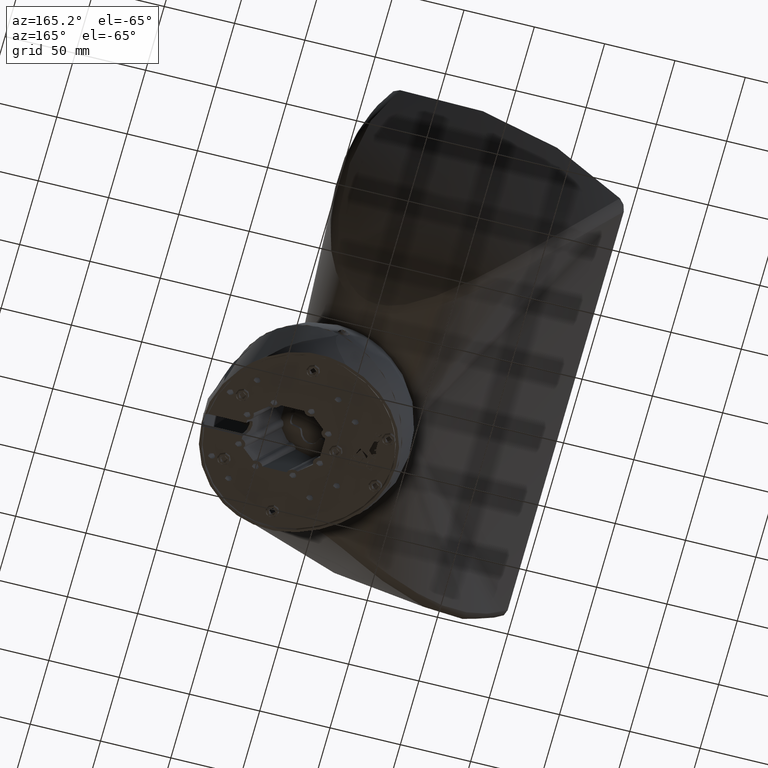
[diagram: clean part render]
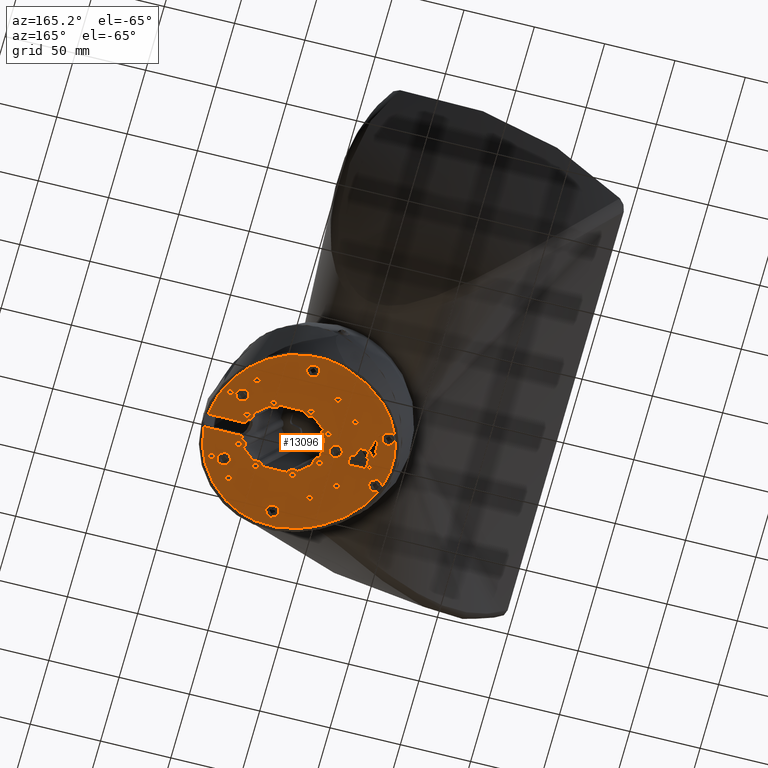
[diagram: same view with one face highlighted and labeled with its STEP entity id]
A machine part, auxiliary view. The second image highlights one B-rep face of the part: STEP entity #13096.
In plain terms, the highlighted planar face has unit normal (0, -0, 1).
Its self-contained STEP definition (entity closure, byte-faithful):
#167=ELLIPSE('',#13928,4.79200723427389,4.15);
#168=ELLIPSE('',#13929,4.79200723427389,4.15);
#169=ELLIPSE('',#13930,4.79200723427389,4.15);
#170=ELLIPSE('',#13931,4.79200723427389,4.15);
#171=ELLIPSE('',#13932,4.79200723427389,4.15);
#172=ELLIPSE('',#13933,4.79200723427389,4.15);
#173=ELLIPSE('',#13934,4.79200723427389,4.15);
#174=ELLIPSE('',#13935,4.79200723427389,4.15);
#175=ELLIPSE('',#13936,2.48260615751539,2.15);
#176=ELLIPSE('',#13937,2.48260615751539,2.15);
#177=ELLIPSE('',#13938,2.48260615751539,2.15);
#178=ELLIPSE('',#13939,2.48260615751539,2.15);
#179=ELLIPSE('',#13940,2.48260615751539,2.15);
#180=ELLIPSE('',#13941,2.48260615751539,2.15);
#181=ELLIPSE('',#13942,2.48260615751539,2.15);
#182=ELLIPSE('',#13943,2.48260615751539,2.15);
#183=ELLIPSE('',#13944,2.48260615751539,2.15);
#184=ELLIPSE('',#13945,2.48260615751539,2.15);
#185=ELLIPSE('',#13946,2.48260615751539,2.15);
#186=ELLIPSE('',#13947,2.48260615751539,2.15);
#187=ELLIPSE('',#13948,2.48260615751539,2.15);
#188=ELLIPSE('',#13949,2.48260615751539,2.15);
#189=ELLIPSE('',#13950,2.48260615751539,2.15);
#190=ELLIPSE('',#13951,2.48260615751539,2.15);
#191=ELLIPSE('',#13952,2.48260615751539,2.15);
#192=ELLIPSE('',#13953,2.48260615751539,2.15);
#193=ELLIPSE('',#13954,2.48260615751539,2.15);
#194=ELLIPSE('',#13955,2.48260615751539,2.15);
#195=ELLIPSE('',#13956,2.48260615751539,2.15);
#196=ELLIPSE('',#13957,2.48260615751539,2.15);
#197=ELLIPSE('',#13958,2.48260615751539,2.15);
#198=ELLIPSE('',#13959,2.48260615751539,2.15);
#199=ELLIPSE('',#13960,2.48260615751539,2.15);
#200=ELLIPSE('',#13961,2.48260615751539,2.15);
#201=ELLIPSE('',#13962,2.48260615751539,2.15);
#202=ELLIPSE('',#13963,2.48260615751539,2.15);
#203=ELLIPSE('',#13964,2.48260615751539,2.15);
#204=ELLIPSE('',#13965,2.48260615751539,2.15);
#205=ELLIPSE('',#13966,2.48260615751539,2.15);
#206=ELLIPSE('',#13967,2.48260615751539,2.15);
#698=B_SPLINE_CURVE_WITH_KNOTS('',3,(#26231,#26232,#26233,#26234,#26235,
#26236,#26237,#26238,#26239,#26240,#26241,#26242,#26243,#26244,#26245,#26246,
#26247,#26248,#26249,#26250,#26251),.UNSPECIFIED.,.F.,.F.,(4,1,1,1,1,1,
1,1,1,1,1,1,1,1,1,1,1,1,4),(0.,0.0222905602411224,0.0468256161435199,0.0741096627522843,
0.100100348861882,0.131099313877017,0.159301403327689,0.188105002735249,
0.218568047152892,0.245678888293702,0.276221197643601,0.304529247389556,
0.330410722515809,0.35159856373899,0.371349257786166,0.395352732569839,
0.416170014554857,0.441921080068875,0.461269035095337),.UNSPECIFIED.);
#700=B_SPLINE_CURVE_WITH_KNOTS('',3,(#26479,#26480,#26481,#26482,#26483,
#26484,#26485,#26486,#26487,#26488,#26489,#26490,#26491,#26492,#26493,#26494,
#26495,#26496,#26497,#26498,#26499,#26500,#26501,#26502,#26503,#26504,#26505,
#26506,#26507),.UNSPECIFIED.,.F.,.F.,(4,1,1,1,1,1,1,1,1,1,1,1,1,1,1,1,1,
1,1,1,1,1,1,1,1,1,4),(-0.871282442719549,-0.835622033795041,-0.810447402370176,
-0.790047229705114,-0.761437389508743,-0.724271033808937,-0.676656900777605,
-0.637252566274902,-0.604655084643276,-0.566825589891751,-0.534386553733896,
-0.501183799313791,-0.467824871556456,-0.426576689547348,-0.385289551401341,
-0.343389161880017,-0.309635563541297,-0.283675772405391,-0.254147054406676,
-0.222613283042084,-0.189449452707204,-0.15942057932507,-0.126335499182771,
-0.0918969856858392,-0.0596928114288311,-0.034857438695973,0.),
 .UNSPECIFIED.);
#702=B_SPLINE_CURVE_WITH_KNOTS('',3,(#26610,#26611,#26612,#26613,#26614,
#26615,#26616,#26617,#26618,#26619,#26620,#26621,#26622,#26623,#26624,#26625,
#26626,#26627,#26628,#26629,#26630,#26631,#26632,#26633,#26634,#26635,#26636,
#26637,#26638,#26639,#26640),.UNSPECIFIED.,.F.,.F.,(4,1,1,1,1,1,1,1,1,1,
1,1,1,1,1,1,1,1,1,1,1,1,1,1,1,1,1,1,4),(-0.406048563754544,-0.396936436027837,
-0.383290195941723,-0.370138119630321,-0.355677769351317,-0.344525455448495,
-0.328938381173046,-0.314641492827639,-0.303918888963683,-0.292643436565991,
-0.278396475116149,-0.263558215714737,-0.252265521660361,-0.234487203663132,
-0.212783058905039,-0.191757715227544,-0.167774169433917,-0.154689170733976,
-0.143592850282682,-0.127598258074176,-0.111523807434584,-0.0961447540449187,
-0.0828892516294314,-0.0680973184374686,-0.056738850684477,-0.0432741258928161,
-0.0295691929470862,-0.0159576026472331,0.),.UNSPECIFIED.);
#704=B_SPLINE_CURVE_WITH_KNOTS('',3,(#26806,#26807,#26808,#26809,#26810,
#26811,#26812,#26813,#26814,#26815,#26816,#26817,#26818,#26819,#26820,#26821,
#26822,#26823,#26824,#26825,#26826,#26827),.UNSPECIFIED.,.F.,.F.,(4,1,1,
1,1,1,1,1,1,1,1,1,1,1,1,1,1,1,1,4),(0.,0.0253302825688272,0.0464574489431097,
0.0649553625982381,0.0900474275399668,0.117383625319405,0.142416580094806,
0.165691406009347,0.198208632673599,0.229138874707489,0.249354176451965,
0.27162473216854,0.292378898334943,0.308879413996873,0.339757339542122,
0.359851930105375,0.37942508524362,0.394052286037923,0.415976267075429,
0.43304305131843),.UNSPECIFIED.);
#706=B_SPLINE_CURVE_WITH_KNOTS('',3,(#26907,#26908,#26909,#26910,#26911,
#26912,#26913,#26914,#26915,#26916,#26917,#26918,#26919,#26920,#26921,#26922,
#26923,#26924),.UNSPECIFIED.,.F.,.F.,(4,1,1,1,1,1,1,1,1,1,1,1,1,1,1,4),
(0.,0.00904991533232801,0.0250339165839913,0.0372981425291152,0.0479101946283955,
0.0604639851087015,0.0739952964788849,0.0860505226699753,0.0949016799896533,
0.104181741415928,0.113738632767499,0.123111435155605,0.13273530313796,
0.140666378919746,0.149081600922968,0.158222854745),.UNSPECIFIED.);
#720=B_SPLINE_CURVE_WITH_KNOTS('',3,(#27254,#27255,#27256,#27257,#27258,
#27259,#27260,#27261,#27262,#27263,#27264,#27265,#27266,#27267,#27268,#27269,
#27270,#27271,#27272,#27273,#27274,#27275,#27276,#27277,#27278,#27279,#27280),
 .UNSPECIFIED.,.F.,.F.,(4,1,1,1,1,1,1,1,1,1,1,1,1,1,1,1,1,1,1,1,1,1,1,1,
4),(-1.5913567868705,-1.53140051184886,-1.46294894374873,-1.37983071215481,
-1.32193654401816,-1.25367881397015,-1.19855851906784,-1.14645819564077,
-1.09582966166501,-1.02134547264147,-0.961538411307949,-0.899112803812252,
-0.849351460083666,-0.780063176903213,-0.686273105507491,-0.605662525166981,
-0.531563448655091,-0.432448600560106,-0.36613824351177,-0.303188980835192,
-0.221963419532148,-0.155232489729754,-0.101766244594229,-0.0425592727006652,
0.),.UNSPECIFIED.);
#724=B_SPLINE_CURVE_WITH_KNOTS('',3,(#27443,#27444,#27445,#27446,#27447,
#27448,#27449,#27450,#27451,#27452,#27453,#27454,#27455,#27456,#27457,#27458,
#27459,#27460,#27461,#27462,#27463,#27464),.UNSPECIFIED.,.F.,.F.,(4,1,1,
1,1,1,1,1,1,1,1,1,1,1,1,1,1,1,1,4),(-1.60312879394299,-1.51388410981542,
-1.42883111996703,-1.34028723482611,-1.24614884211295,-1.15802448360198,
-1.08039420474353,-0.956159022876716,-0.845953217156391,-0.738307328864688,
-0.643662918419858,-0.594302616871623,-0.540356001523823,-0.478960226349226,
-0.431140980677811,-0.367359418801369,-0.258378935907872,-0.175375542999649,
-0.0875136936365062,0.),.UNSPECIFIED.);
#730=B_SPLINE_CURVE_WITH_KNOTS('',3,(#27740,#27741,#27742,#27743,#27744,
#27745,#27746,#27747,#27748,#27749,#27750,#27751),.UNSPECIFIED.,.F.,.F.,
(4,1,1,1,1,1,1,1,1,4),(-6.555894861033,-6.53851998097866,-6.48745304621884,
-6.38531917669921,-6.3342522419394,-6.23211837241977,-6.18105143765995,
-6.07891756814032,-6.02785063338051,-6.01047575332662),.UNSPECIFIED.);
#731=B_SPLINE_CURVE_WITH_KNOTS('',3,(#27757,#27758,#27759,#27760,#27761,
#27762,#27763,#27764,#27765,#27766,#27767,#27768,#27769,#27770,#27771),
 .UNSPECIFIED.,.F.,.F.,(4,1,1,1,1,1,1,1,1,1,1,1,4),(-7.50879174141514,-7.40665787189551,
-7.30452400237588,-7.25345706761606,-7.15132319809643,-7.10025626333662,
-6.99812239381699,-6.94705545905718,-6.84492158953755,-6.79385465477773,
-6.6917207852581,-6.64065385049829,-6.60702113444734),.UNSPECIFIED.);
#732=B_SPLINE_CURVE_WITH_KNOTS('',3,(#27773,#27774,#27775,#27776,#27777,
#27778,#27779,#27780,#27781,#27782,#27783,#27784,#27785,#27786,#27787,#27788,
#27789,#27790,#27791,#27792,#27793,#27794,#27795,#27796,#27797,#27798),
 .UNSPECIFIED.,.F.,.F.,(4,1,1,1,1,1,1,1,1,1,1,1,1,1,1,1,1,1,1,1,1,1,1,4),
(-5.69514311687433,-5.2205478571348,-4.74595259739527,-4.50865496752551,
-4.15270852272086,-4.03405970778598,-3.85608648538366,-3.79676207791622,
-3.67811326298134,-3.61878885551389,-3.44081563311157,-3.32216681817669,
-3.08486918830693,-2.96622037337204,-2.6102739285674,-2.37297629869764,
-2.01702985389299,-1.89838103895811,-1.66108340908834,-1.54243459415346,
-1.18648814934882,-0.949190519479054,-0.474595259739527,0.),
 .UNSPECIFIED.);
#733=B_SPLINE_CURVE_WITH_KNOTS('',3,(#27800,#27801,#27802,#27803,#27804,
#27805,#27806,#27807,#27808,#27809,#27810,#27811,#27812,#27813,#27814,#27815,
#27816,#27817,#27818,#27819,#27820,#27821,#27822,#27823,#27824,#27825,#27826,
#27827,#27828,#27829,#27830,#27831,#27832,#27833,#27834,#27835,#27836,#27837,
#27838,#27839,#27840,#27841,#27842,#27843,#27844,#27845,#27846,#27847,#27848,
#27849,#27850,#27851,#27852,#27853,#27854,#27855),.UNSPECIFIED.,.F.,.F.,
(4,1,1,1,1,1,1,1,1,1,1,1,1,1,1,1,1,1,1,1,1,1,1,1,1,1,1,1,1,1,1,1,1,1,1,
1,1,1,1,1,1,1,1,1,1,1,1,1,1,1,1,1,1,4),(-55.9096240114957,-55.8816906808057,
-55.7488642495404,-55.6824510339077,-55.4832113870097,-55.3503849557444,
-55.0847320932137,-54.9519056619484,-54.6862527994177,-54.5534263681524,
-54.3541867212544,-54.2877735056217,-54.1549470743564,-54.0885338587237,
-53.9889140352747,-53.9557074274584,-53.8892942118257,-53.8560876040094,
-53.7896743883767,-53.7564677805604,-53.6900545649277,-53.6568479571114,
-53.5572281336624,-53.4908149180297,-53.3579884867644,-53.2915752711318,
-53.0923356242338,-52.9595091929684,-52.6938563304378,-52.5610298991725,
-52.2953770366418,-52.1625506053765,-51.9633109584785,-51.8968977428458,
-51.7640713115805,-51.6976580959478,-51.5648316646825,-51.4984184490498,
-51.3987986256008,-51.3655920177845,-51.2991788021518,-51.2659721943355,
-51.1995589787028,-51.1663523708865,-51.0999391552538,-51.0667325474375,
-50.9671127239885,-50.9006995083558,-50.7678730770905,-50.7014598614578,
-50.5686334301925,-50.5022202145598,-50.3029805676618,-50.0373277051312),
 .UNSPECIFIED.);
#734=B_SPLINE_CURVE_WITH_KNOTS('',3,(#27895,#27896,#27897,#27898,#27899,
#27900,#27901,#27902,#27903,#27904,#27905,#27906,#27907,#27908,#27909,#27910,
#27911,#27912,#27913,#27914,#27915,#27916,#27917,#27918,#27919,#27920,#27921,
#27922,#27923,#27924,#27925,#27926,#27927,#27928,#27929,#27930,#27931,#27932,
#27933,#27934,#27935,#27936,#27937,#27938,#27939,#27940,#27941,#27942,#27943,
#27944,#27945,#27946,#27947,#27948,#27949,#27950),.UNSPECIFIED.,.F.,.F.,
(4,1,1,1,1,1,1,1,1,1,1,1,1,1,1,1,1,1,1,1,1,1,1,1,1,1,1,1,1,1,1,1,1,1,1,
1,1,1,1,1,1,1,1,1,1,1,1,1,1,1,1,1,1,4),(-62.7886651066028,-62.5230122440722,
-62.3237725971742,-62.2573593815415,-62.1245329502762,-62.0581197346435,
-61.9252933033782,-61.8588800877455,-61.7592602642965,-61.7260536564802,
-61.6596404408475,-61.6264338330312,-61.5600206173985,-61.5268140095822,
-61.4604007939495,-61.4271941861332,-61.3275743626842,-61.2611611470515,
-61.1283347157862,-61.0619215001535,-60.9290950688882,-60.8626818532555,
-60.6634422063576,-60.5306157750922,-60.2649629125616,-60.1321364812962,
-59.8664836187656,-59.7336571875002,-59.5344175406022,-59.4680043249696,
-59.3351778937043,-59.2687646780716,-59.1691448546226,-59.1359382468063,
-59.0695250311736,-59.0363184233573,-58.9699052077246,-58.9366985999083,
-58.8702853842756,-58.8370787764593,-58.7374589530103,-58.6710457373776,
-58.5382193061123,-58.4718060904796,-58.2725664435816,-58.1397400123163,
-57.8740871497856,-57.7412607185203,-57.4756078559896,-57.3427814247243,
-57.1435417778263,-57.0771285621936,-56.9443021309283,-56.9163688002383),
 .UNSPECIFIED.);
#735=B_SPLINE_CURVE_WITH_KNOTS('',3,(#27952,#27953,#27954,#27955,#27956,
#27957,#27958,#27959,#27960,#27961,#27962,#27963,#27964,#27965,#27966,#27967,
#27968,#27969,#27970,#27971,#27972,#27973,#27974,#27975,#27976,#27977,#27978,
#27979,#27980,#27981),.UNSPECIFIED.,.F.,.F.,(4,1,1,1,1,1,1,1,1,1,1,1,1,
1,1,1,1,1,1,1,1,1,1,1,1,1,1,4),(-5.69402562299801,-5.21952348774817,-4.74502135249834,
-4.50777028487342,-4.15189368343605,-4.03326814962359,-3.8553298489049,
-3.79601708199867,-3.67739154818621,-3.61807878127998,-3.44014048056129,
-3.32151494674884,-3.08426387912392,-2.96563834531146,-2.72838727768654,
-2.60976174387409,-2.4318234431554,-2.37251067624917,-2.25388514243671,
-2.19457237553048,-2.01663407481179,-1.89800854099934,-1.66075747337442,
-1.54213193956196,-1.18625533812458,-0.949004270499668,-0.474502135249834,
0.),.UNSPECIFIED.);
#736=B_SPLINE_CURVE_WITH_KNOTS('',3,(#27982,#27983,#27984,#27985,#27986,
#27987,#27988,#27989,#27990,#27991,#27992,#27993,#27994,#27995,#27996),
 .UNSPECIFIED.,.F.,.F.,(4,1,1,1,1,1,1,1,1,1,1,1,4),(-5.95934947991183,-5.92571676386088,
-5.87464982910106,-5.77251595958144,-5.72144902482162,-5.61931515530199,
-5.56824822054218,-5.46611435102255,-5.41504741626273,-5.3129135467431,
-5.26184661198329,-5.15971274246366,-5.05757887294403),.UNSPECIFIED.);
#960=FACE_BOUND('',#4733,.T.);
#961=FACE_BOUND('',#4734,.T.);
#962=FACE_BOUND('',#4735,.T.);
#963=FACE_BOUND('',#4736,.T.);
#964=FACE_BOUND('',#4737,.T.);
#965=FACE_BOUND('',#4738,.T.);
#966=FACE_BOUND('',#4739,.T.);
#967=FACE_BOUND('',#4740,.T.);
#968=FACE_BOUND('',#4741,.T.);
#969=FACE_BOUND('',#4742,.T.);
#970=FACE_BOUND('',#4743,.T.);
#971=FACE_BOUND('',#4744,.T.);
#972=FACE_BOUND('',#4745,.T.);
#973=FACE_BOUND('',#4746,.T.);
#974=FACE_BOUND('',#4747,.T.);
#975=FACE_BOUND('',#4748,.T.);
#976=FACE_BOUND('',#4749,.T.);
#977=FACE_BOUND('',#4750,.T.);
#978=FACE_BOUND('',#4751,.T.);
#979=FACE_BOUND('',#4752,.T.);
#980=FACE_BOUND('',#4753,.T.);
#981=FACE_BOUND('',#4754,.T.);
#982=FACE_BOUND('',#4755,.T.);
#983=FACE_BOUND('',#4756,.T.);
#984=FACE_BOUND('',#4757,.T.);
#985=FACE_BOUND('',#4758,.T.);
#986=FACE_BOUND('',#4759,.T.);
#987=FACE_BOUND('',#4760,.T.);
#988=FACE_BOUND('',#4761,.T.);
#2000=LINE('',#26182,#3086);
#2005=LINE('',#26277,#3091);
#2008=LINE('',#26282,#3094);
#2019=LINE('',#26306,#3105);
#2023=LINE('',#26314,#3109);
#2026=LINE('',#26320,#3112);
#2029=LINE('',#26326,#3115);
#2032=LINE('',#26332,#3118);
#2035=LINE('',#26338,#3121);
#2038=LINE('',#26344,#3124);
#2041=LINE('',#26349,#3127);
#2052=LINE('',#26373,#3138);
#2056=LINE('',#26381,#3142);
#2059=LINE('',#26387,#3145);
#2062=LINE('',#26393,#3148);
#2065=LINE('',#26399,#3151);
#2068=LINE('',#26405,#3154);
#2071=LINE('',#26411,#3157);
#2074=LINE('',#26416,#3160);
#2078=LINE('',#26543,#3164);
#2082=LINE('',#26675,#3168);
#2086=LINE('',#26689,#3172);
#2095=LINE('',#26713,#3181);
#2097=LINE('',#26719,#3183);
#2099=LINE('',#26723,#3185);
#2101=LINE('',#26726,#3187);
#2104=LINE('',#26738,#3190);
#2108=LINE('',#26749,#3194);
#2110=LINE('',#26755,#3196);
#2115=LINE('',#26854,#3201);
#2118=LINE('',#26860,#3204);
#2121=LINE('',#26866,#3207);
#2125=LINE('',#26947,#3211);
#2128=LINE('',#26952,#3214);
#2157=LINE('',#27340,#3243);
#2161=LINE('',#27347,#3247);
#2164=LINE('',#27353,#3250);
#2167=LINE('',#27359,#3253);
#2170=LINE('',#27365,#3256);
#2173=LINE('',#27370,#3259);
#2177=LINE('',#27493,#3263);
#2180=LINE('',#27499,#3266);
#2183=LINE('',#27504,#3269);
#2190=LINE('',#27727,#3276);
#2192=LINE('',#27857,#3278);
#2193=LINE('',#27859,#3279);
#2194=LINE('',#27863,#3280);
#2195=LINE('',#27867,#3281);
#2196=LINE('',#27871,#3282);
#2197=LINE('',#27875,#3283);
#2198=LINE('',#27879,#3284);
#2199=LINE('',#27883,#3285);
#2200=LINE('',#27887,#3286);
#2201=LINE('',#27891,#3287);
#2202=LINE('',#27893,#3288);
#3086=VECTOR('',#16043,10.);
#3091=VECTOR('',#16050,10.);
#3094=VECTOR('',#16055,10.);
#3105=VECTOR('',#16076,10.);
#3109=VECTOR('',#16082,10.);
#3112=VECTOR('',#16087,10.);
#3115=VECTOR('',#16092,10.);
#3118=VECTOR('',#16097,10.);
#3121=VECTOR('',#16102,10.);
#3124=VECTOR('',#16107,10.);
#3127=VECTOR('',#16112,10.);
#3138=VECTOR('',#16133,10.);
#3142=VECTOR('',#16139,10.);
#3145=VECTOR('',#16144,10.);
#3148=VECTOR('',#16149,10.);
#3151=VECTOR('',#16154,10.);
#3154=VECTOR('',#16159,10.);
#3157=VECTOR('',#16164,10.);
#3160=VECTOR('',#16169,10.);
#3164=VECTOR('',#16177,10.);
#3168=VECTOR('',#16183,10.);
#3172=VECTOR('',#16197,10.);
#3181=VECTOR('',#16218,10.);
#3183=VECTOR('',#16226,10.);
#3185=VECTOR('',#16230,10.);
#3187=VECTOR('',#16234,10.);
#3190=VECTOR('',#16245,10.);
#3194=VECTOR('',#16257,10.);
#3196=VECTOR('',#16263,10.);
#3201=VECTOR('',#16270,10.);
#3204=VECTOR('',#16275,10.);
#3207=VECTOR('',#16280,10.);
#3211=VECTOR('',#16286,10.);
#3214=VECTOR('',#16291,10.);
#3243=VECTOR('',#16336,10.);
#3247=VECTOR('',#16342,10.);
#3250=VECTOR('',#16347,10.);
#3253=VECTOR('',#16352,10.);
#3256=VECTOR('',#16357,10.);
#3259=VECTOR('',#16362,10.);
#3263=VECTOR('',#16370,10.);
#3266=VECTOR('',#16375,10.);
#3269=VECTOR('',#16380,10.);
#3276=VECTOR('',#16395,10.);
#3278=VECTOR('',#16415,10.);
#3279=VECTOR('',#16416,10.);
#3280=VECTOR('',#16419,10.);
#3281=VECTOR('',#16422,10.);
#3282=VECTOR('',#16425,10.);
#3283=VECTOR('',#16428,10.);
#3284=VECTOR('',#16431,10.);
#3285=VECTOR('',#16434,10.);
#3286=VECTOR('',#16437,10.);
#3287=VECTOR('',#16440,10.);
#3288=VECTOR('',#16441,10.);
#3959=FACE_OUTER_BOUND('',#4732,.T.);
#4732=EDGE_LOOP('',(#11040,#11041,#11042,#11043,#11044,#11045,#11046,#11047,
#11048,#11049,#11050,#11051,#11052,#11053,#11054,#11055,#11056,#11057,#11058,
#11059,#11060,#11061,#11062,#11063,#11064,#11065,#11066,#11067,#11068,#11069));
#4733=EDGE_LOOP('',(#11070,#11071));
#4734=EDGE_LOOP('',(#11072,#11073));
#4735=EDGE_LOOP('',(#11074,#11075));
#4736=EDGE_LOOP('',(#11076,#11077));
#4737=EDGE_LOOP('',(#11078,#11079));
#4738=EDGE_LOOP('',(#11080,#11081));
#4739=EDGE_LOOP('',(#11082,#11083));
#4740=EDGE_LOOP('',(#11084,#11085));
#4741=EDGE_LOOP('',(#11086,#11087));
#4742=EDGE_LOOP('',(#11088,#11089));
#4743=EDGE_LOOP('',(#11090,#11091));
#4744=EDGE_LOOP('',(#11092,#11093));
#4745=EDGE_LOOP('',(#11094,#11095));
#4746=EDGE_LOOP('',(#11096,#11097));
#4747=EDGE_LOOP('',(#11098,#11099));
#4748=EDGE_LOOP('',(#11100,#11101));
#4749=EDGE_LOOP('',(#11102));
#4750=EDGE_LOOP('',(#11103));
#4751=EDGE_LOOP('',(#11104));
#4752=EDGE_LOOP('',(#11105));
#4753=EDGE_LOOP('',(#11106));
#4754=EDGE_LOOP('',(#11107,#11108,#11109,#11110,#11111,#11112,#11113,#11114,
#11115,#11116,#11117,#11118));
#4755=EDGE_LOOP('',(#11119,#11120,#11121,#11122,#11123,#11124,#11125,#11126));
#4756=EDGE_LOOP('',(#11127,#11128,#11129,#11130));
#4757=EDGE_LOOP('',(#11131,#11132,#11133,#11134,#11135,#11136,#11137,#11138));
#4758=EDGE_LOOP('',(#11139,#11140,#11141,#11142));
#4759=EDGE_LOOP('',(#11143,#11144,#11145,#11146,#11147,#11148,#11149,#11150));
#4760=EDGE_LOOP('',(#11151,#11152,#11153,#11154,#11155,#11156,#11157,#11158));
#4761=EDGE_LOOP('',(#11159,#11160,#11161,#11162));
#5093=CIRCLE('',#13870,1.75);
#5096=CIRCLE('',#13876,1.75);
#5097=CIRCLE('',#13879,2.5);
#5098=CIRCLE('',#13884,2.5);
#5100=CIRCLE('',#13888,1.75);
#5102=CIRCLE('',#13924,4.75);
#5103=CIRCLE('',#13925,4.75);
#5104=CIRCLE('',#13926,4.75);
#5105=CIRCLE('',#13927,4.75);
#5106=CIRCLE('',#13968,4.75);
#5107=CIRCLE('',#13969,4.75);
#5108=CIRCLE('',#13970,4.75);
#5109=CIRCLE('',#13971,4.75);
#5110=CIRCLE('',#13972,4.75);
#6023=VERTEX_POINT('',#26180);
#6024=VERTEX_POINT('',#26181);
#6027=VERTEX_POINT('',#26230);
#6029=VERTEX_POINT('',#26276);
#6037=VERTEX_POINT('',#26304);
#6038=VERTEX_POINT('',#26305);
#6041=VERTEX_POINT('',#26313);
#6043=VERTEX_POINT('',#26319);
#6045=VERTEX_POINT('',#26325);
#6047=VERTEX_POINT('',#26331);
#6049=VERTEX_POINT('',#26337);
#6051=VERTEX_POINT('',#26343);
#6059=VERTEX_POINT('',#26371);
#6060=VERTEX_POINT('',#26372);
#6063=VERTEX_POINT('',#26380);
#6065=VERTEX_POINT('',#26386);
#6067=VERTEX_POINT('',#26392);
#6069=VERTEX_POINT('',#26398);
#6071=VERTEX_POINT('',#26404);
#6073=VERTEX_POINT('',#26410);
#6075=VERTEX_POINT('',#26477);
#6076=VERTEX_POINT('',#26478);
#6079=VERTEX_POINT('',#26542);
#6081=VERTEX_POINT('',#26609);
#6083=VERTEX_POINT('',#26679);
#6086=VERTEX_POINT('',#26684);
#6087=VERTEX_POINT('',#26688);
#6094=VERTEX_POINT('',#26706);
#6095=VERTEX_POINT('',#26708);
#6096=VERTEX_POINT('',#26712);
#6097=VERTEX_POINT('',#26718);
#6098=VERTEX_POINT('',#26722);
#6099=VERTEX_POINT('',#26728);
#6100=VERTEX_POINT('',#26729);
#6103=VERTEX_POINT('',#26737);
#6105=VERTEX_POINT('',#26743);
#6107=VERTEX_POINT('',#26753);
#6108=VERTEX_POINT('',#26754);
#6111=VERTEX_POINT('',#26805);
#6113=VERTEX_POINT('',#26853);
#6115=VERTEX_POINT('',#26859);
#6117=VERTEX_POINT('',#26865);
#6119=VERTEX_POINT('',#26906);
#6121=VERTEX_POINT('',#26946);
#6137=VERTEX_POINT('',#27193);
#6139=VERTEX_POINT('',#27253);
#6147=VERTEX_POINT('',#27333);
#6149=VERTEX_POINT('',#27339);
#6151=VERTEX_POINT('',#27346);
#6153=VERTEX_POINT('',#27352);
#6155=VERTEX_POINT('',#27358);
#6157=VERTEX_POINT('',#27364);
#6159=VERTEX_POINT('',#27441);
#6160=VERTEX_POINT('',#27442);
#6163=VERTEX_POINT('',#27492);
#6165=VERTEX_POINT('',#27498);
#6167=VERTEX_POINT('',#27734);
#6168=VERTEX_POINT('',#27735);
#6169=VERTEX_POINT('',#27737);
#6170=VERTEX_POINT('',#27739);
#6171=VERTEX_POINT('',#27752);
#6172=VERTEX_POINT('',#27754);
#6173=VERTEX_POINT('',#27756);
#6174=VERTEX_POINT('',#27772);
#6175=VERTEX_POINT('',#27799);
#6176=VERTEX_POINT('',#27856);
#6177=VERTEX_POINT('',#27858);
#6178=VERTEX_POINT('',#27860);
#6179=VERTEX_POINT('',#27862);
#6180=VERTEX_POINT('',#27864);
#6181=VERTEX_POINT('',#27866);
#6182=VERTEX_POINT('',#27868);
#6183=VERTEX_POINT('',#27870);
#6184=VERTEX_POINT('',#27872);
#6185=VERTEX_POINT('',#27874);
#6186=VERTEX_POINT('',#27876);
#6187=VERTEX_POINT('',#27878);
#6188=VERTEX_POINT('',#27880);
#6189=VERTEX_POINT('',#27882);
#6190=VERTEX_POINT('',#27884);
#6191=VERTEX_POINT('',#27886);
#6192=VERTEX_POINT('',#27888);
#6193=VERTEX_POINT('',#27890);
#6194=VERTEX_POINT('',#27892);
#6195=VERTEX_POINT('',#27894);
#6196=VERTEX_POINT('',#27951);
#6197=VERTEX_POINT('',#27997);
#6198=VERTEX_POINT('',#27998);
#6199=VERTEX_POINT('',#28001);
#6200=VERTEX_POINT('',#28002);
#6201=VERTEX_POINT('',#28005);
#6202=VERTEX_POINT('',#28006);
#6203=VERTEX_POINT('',#28009);
#6204=VERTEX_POINT('',#28010);
#6205=VERTEX_POINT('',#28013);
#6206=VERTEX_POINT('',#28014);
#6207=VERTEX_POINT('',#28017);
#6208=VERTEX_POINT('',#28018);
#6209=VERTEX_POINT('',#28021);
#6210=VERTEX_POINT('',#28022);
#6211=VERTEX_POINT('',#28025);
#6212=VERTEX_POINT('',#28026);
#6213=VERTEX_POINT('',#28029);
#6214=VERTEX_POINT('',#28030);
#6215=VERTEX_POINT('',#28033);
#6216=VERTEX_POINT('',#28034);
#6217=VERTEX_POINT('',#28037);
#6218=VERTEX_POINT('',#28038);
#6219=VERTEX_POINT('',#28041);
#6220=VERTEX_POINT('',#28042);
#6221=VERTEX_POINT('',#28045);
#6222=VERTEX_POINT('',#28046);
#6223=VERTEX_POINT('',#28049);
#6224=VERTEX_POINT('',#28050);
#6225=VERTEX_POINT('',#28053);
#6226=VERTEX_POINT('',#28054);
#6227=VERTEX_POINT('',#28057);
#6228=VERTEX_POINT('',#28058);
#6229=VERTEX_POINT('',#28061);
#6230=VERTEX_POINT('',#28063);
#6231=VERTEX_POINT('',#28065);
#6232=VERTEX_POINT('',#28067);
#6233=VERTEX_POINT('',#28069);
#7660=EDGE_CURVE('',#6023,#6024,#2000,.T.);
#7664=EDGE_CURVE('',#6027,#6023,#698,.T.);
#7667=EDGE_CURVE('',#6029,#6027,#2005,.T.);
#7670=EDGE_CURVE('',#6024,#6029,#2008,.T.);
#7681=EDGE_CURVE('',#6037,#6038,#2019,.T.);
#7685=EDGE_CURVE('',#6041,#6037,#2023,.T.);
#7688=EDGE_CURVE('',#6043,#6041,#2026,.T.);
#7691=EDGE_CURVE('',#6045,#6043,#2029,.T.);
#7694=EDGE_CURVE('',#6047,#6045,#2032,.T.);
#7697=EDGE_CURVE('',#6049,#6047,#2035,.T.);
#7700=EDGE_CURVE('',#6051,#6049,#2038,.T.);
#7703=EDGE_CURVE('',#6038,#6051,#2041,.T.);
#7714=EDGE_CURVE('',#6059,#6060,#2052,.T.);
#7718=EDGE_CURVE('',#6063,#6059,#2056,.T.);
#7721=EDGE_CURVE('',#6065,#6063,#2059,.T.);
#7724=EDGE_CURVE('',#6067,#6065,#2062,.T.);
#7727=EDGE_CURVE('',#6069,#6067,#2065,.T.);
#7730=EDGE_CURVE('',#6071,#6069,#2068,.T.);
#7733=EDGE_CURVE('',#6073,#6071,#2071,.T.);
#7736=EDGE_CURVE('',#6060,#6073,#2074,.T.);
#7738=EDGE_CURVE('',#6075,#6076,#700,.T.);
#7742=EDGE_CURVE('',#6079,#6075,#2078,.T.);
#7745=EDGE_CURVE('',#6081,#6079,#702,.T.);
#7748=EDGE_CURVE('',#6076,#6081,#2082,.T.);
#7753=EDGE_CURVE('',#6083,#6086,#5093,.T.);
#7754=EDGE_CURVE('',#6086,#6087,#2086,.T.);
#7764=EDGE_CURVE('',#6095,#6094,#5096,.T.);
#7766=EDGE_CURVE('',#6096,#6095,#2095,.T.);
#7768=EDGE_CURVE('',#6087,#6096,#5097,.T.);
#7769=EDGE_CURVE('',#6097,#6083,#2097,.T.);
#7771=EDGE_CURVE('',#6098,#6097,#2099,.T.);
#7773=EDGE_CURVE('',#6094,#6098,#2101,.T.);
#7774=EDGE_CURVE('',#6099,#6100,#5098,.T.);
#7778=EDGE_CURVE('',#6103,#6099,#2104,.T.);
#7781=EDGE_CURVE('',#6105,#6103,#5100,.T.);
#7784=EDGE_CURVE('',#6100,#6105,#2108,.T.);
#7786=EDGE_CURVE('',#6107,#6108,#2110,.T.);
#7790=EDGE_CURVE('',#6111,#6107,#704,.T.);
#7793=EDGE_CURVE('',#6113,#6111,#2115,.T.);
#7796=EDGE_CURVE('',#6115,#6113,#2118,.T.);
#7799=EDGE_CURVE('',#6117,#6115,#2121,.T.);
#7802=EDGE_CURVE('',#6119,#6117,#706,.T.);
#7805=EDGE_CURVE('',#6121,#6119,#2125,.T.);
#7808=EDGE_CURVE('',#6108,#6121,#2128,.T.);
#7833=EDGE_CURVE('',#6139,#6137,#720,.T.);
#7851=EDGE_CURVE('',#6149,#6147,#2157,.T.);
#7855=EDGE_CURVE('',#6151,#6149,#2161,.T.);
#7858=EDGE_CURVE('',#6153,#6151,#2164,.T.);
#7861=EDGE_CURVE('',#6155,#6153,#2167,.T.);
#7864=EDGE_CURVE('',#6157,#6155,#2170,.T.);
#7867=EDGE_CURVE('',#6137,#6157,#2173,.T.);
#7871=EDGE_CURVE('',#6159,#6160,#724,.T.);
#7875=EDGE_CURVE('',#6163,#6159,#2177,.T.);
#7878=EDGE_CURVE('',#6165,#6163,#2180,.T.);
#7881=EDGE_CURVE('',#6147,#6165,#2183,.T.);
#7892=EDGE_CURVE('',#6160,#6139,#2190,.T.);
#7894=EDGE_CURVE('',#6167,#6168,#5102,.T.);
#7895=EDGE_CURVE('',#6168,#6169,#5103,.T.);
#7896=EDGE_CURVE('',#6170,#6169,#730,.T.);
#7897=EDGE_CURVE('',#6170,#6171,#5104,.T.);
#7898=EDGE_CURVE('',#6171,#6172,#5105,.T.);
#7899=EDGE_CURVE('',#6173,#6172,#731,.T.);
#7900=EDGE_CURVE('',#6174,#6173,#732,.T.);
#7901=EDGE_CURVE('',#6175,#6174,#733,.T.);
#7902=EDGE_CURVE('',#6176,#6175,#2192,.T.);
#7903=EDGE_CURVE('',#6177,#6176,#2193,.F.);
#7904=EDGE_CURVE('',#6178,#6177,#167,.T.);
#7905=EDGE_CURVE('',#6179,#6178,#2194,.F.);
#7906=EDGE_CURVE('',#6180,#6179,#168,.T.);
#7907=EDGE_CURVE('',#6181,#6180,#2195,.F.);
#7908=EDGE_CURVE('',#6182,#6181,#169,.T.);
#7909=EDGE_CURVE('',#6183,#6182,#2196,.F.);
#7910=EDGE_CURVE('',#6184,#6183,#170,.T.);
#7911=EDGE_CURVE('',#6185,#6184,#2197,.F.);
#7912=EDGE_CURVE('',#6186,#6185,#171,.T.);
#7913=EDGE_CURVE('',#6187,#6186,#2198,.F.);
#7914=EDGE_CURVE('',#6188,#6187,#172,.T.);
#7915=EDGE_CURVE('',#6189,#6188,#2199,.F.);
#7916=EDGE_CURVE('',#6190,#6189,#173,.T.);
#7917=EDGE_CURVE('',#6191,#6190,#2200,.F.);
#7918=EDGE_CURVE('',#6192,#6191,#174,.T.);
#7919=EDGE_CURVE('',#6193,#6192,#2201,.F.);
#7920=EDGE_CURVE('',#6194,#6193,#2202,.T.);
#7921=EDGE_CURVE('',#6195,#6194,#734,.T.);
#7922=EDGE_CURVE('',#6196,#6195,#735,.T.);
#7923=EDGE_CURVE('',#6167,#6196,#736,.T.);
#7924=EDGE_CURVE('',#6197,#6198,#175,.T.);
#7925=EDGE_CURVE('',#6198,#6197,#176,.T.);
#7926=EDGE_CURVE('',#6199,#6200,#177,.T.);
#7927=EDGE_CURVE('',#6200,#6199,#178,.T.);
#7928=EDGE_CURVE('',#6201,#6202,#179,.T.);
#7929=EDGE_CURVE('',#6202,#6201,#180,.T.);
#7930=EDGE_CURVE('',#6203,#6204,#181,.T.);
#7931=EDGE_CURVE('',#6204,#6203,#182,.T.);
#7932=EDGE_CURVE('',#6205,#6206,#183,.T.);
#7933=EDGE_CURVE('',#6206,#6205,#184,.T.);
#7934=EDGE_CURVE('',#6207,#6208,#185,.T.);
#7935=EDGE_CURVE('',#6208,#6207,#186,.T.);
#7936=EDGE_CURVE('',#6209,#6210,#187,.T.);
#7937=EDGE_CURVE('',#6210,#6209,#188,.T.);
#7938=EDGE_CURVE('',#6211,#6212,#189,.T.);
#7939=EDGE_CURVE('',#6212,#6211,#190,.T.);
#7940=EDGE_CURVE('',#6213,#6214,#191,.T.);
#7941=EDGE_CURVE('',#6214,#6213,#192,.T.);
#7942=EDGE_CURVE('',#6215,#6216,#193,.T.);
#7943=EDGE_CURVE('',#6216,#6215,#194,.T.);
#7944=EDGE_CURVE('',#6217,#6218,#195,.T.);
#7945=EDGE_CURVE('',#6218,#6217,#196,.T.);
#7946=EDGE_CURVE('',#6219,#6220,#197,.T.);
#7947=EDGE_CURVE('',#6220,#6219,#198,.T.);
#7948=EDGE_CURVE('',#6221,#6222,#199,.T.);
#7949=EDGE_CURVE('',#6222,#6221,#200,.T.);
#7950=EDGE_CURVE('',#6223,#6224,#201,.T.);
#7951=EDGE_CURVE('',#6224,#6223,#202,.T.);
#7952=EDGE_CURVE('',#6225,#6226,#203,.T.);
#7953=EDGE_CURVE('',#6226,#6225,#204,.T.);
#7954=EDGE_CURVE('',#6227,#6228,#205,.T.);
#7955=EDGE_CURVE('',#6228,#6227,#206,.T.);
#7956=EDGE_CURVE('',#6229,#6229,#5106,.T.);
#7957=EDGE_CURVE('',#6230,#6230,#5107,.T.);
#7958=EDGE_CURVE('',#6231,#6231,#5108,.T.);
#7959=EDGE_CURVE('',#6232,#6232,#5109,.T.);
#7960=EDGE_CURVE('',#6233,#6233,#5110,.T.);
#11040=ORIENTED_EDGE('',*,*,#7894,.T.);
#11041=ORIENTED_EDGE('',*,*,#7895,.T.);
#11042=ORIENTED_EDGE('',*,*,#7896,.F.);
#11043=ORIENTED_EDGE('',*,*,#7897,.T.);
#11044=ORIENTED_EDGE('',*,*,#7898,.T.);
#11045=ORIENTED_EDGE('',*,*,#7899,.F.);
#11046=ORIENTED_EDGE('',*,*,#7900,.F.);
#11047=ORIENTED_EDGE('',*,*,#7901,.F.);
#11048=ORIENTED_EDGE('',*,*,#7902,.F.);
#11049=ORIENTED_EDGE('',*,*,#7903,.F.);
#11050=ORIENTED_EDGE('',*,*,#7904,.F.);
#11051=ORIENTED_EDGE('',*,*,#7905,.F.);
#11052=ORIENTED_EDGE('',*,*,#7906,.F.);
#11053=ORIENTED_EDGE('',*,*,#7907,.F.);
#11054=ORIENTED_EDGE('',*,*,#7908,.F.);
#11055=ORIENTED_EDGE('',*,*,#7909,.F.);
#11056=ORIENTED_EDGE('',*,*,#7910,.F.);
#11057=ORIENTED_EDGE('',*,*,#7911,.F.);
#11058=ORIENTED_EDGE('',*,*,#7912,.F.);
#11059=ORIENTED_EDGE('',*,*,#7913,.F.);
#11060=ORIENTED_EDGE('',*,*,#7914,.F.);
#11061=ORIENTED_EDGE('',*,*,#7915,.F.);
#11062=ORIENTED_EDGE('',*,*,#7916,.F.);
#11063=ORIENTED_EDGE('',*,*,#7917,.F.);
#11064=ORIENTED_EDGE('',*,*,#7918,.F.);
#11065=ORIENTED_EDGE('',*,*,#7919,.F.);
#11066=ORIENTED_EDGE('',*,*,#7920,.F.);
#11067=ORIENTED_EDGE('',*,*,#7921,.F.);
#11068=ORIENTED_EDGE('',*,*,#7922,.F.);
#11069=ORIENTED_EDGE('',*,*,#7923,.F.);
#11070=ORIENTED_EDGE('',*,*,#7924,.F.);
#11071=ORIENTED_EDGE('',*,*,#7925,.F.);
#11072=ORIENTED_EDGE('',*,*,#7926,.F.);
#11073=ORIENTED_EDGE('',*,*,#7927,.F.);
#11074=ORIENTED_EDGE('',*,*,#7928,.F.);
#11075=ORIENTED_EDGE('',*,*,#7929,.F.);
#11076=ORIENTED_EDGE('',*,*,#7930,.F.);
#11077=ORIENTED_EDGE('',*,*,#7931,.F.);
#11078=ORIENTED_EDGE('',*,*,#7932,.F.);
#11079=ORIENTED_EDGE('',*,*,#7933,.F.);
#11080=ORIENTED_EDGE('',*,*,#7934,.F.);
#11081=ORIENTED_EDGE('',*,*,#7935,.F.);
#11082=ORIENTED_EDGE('',*,*,#7936,.F.);
#11083=ORIENTED_EDGE('',*,*,#7937,.F.);
#11084=ORIENTED_EDGE('',*,*,#7938,.F.);
#11085=ORIENTED_EDGE('',*,*,#7939,.F.);
#11086=ORIENTED_EDGE('',*,*,#7940,.F.);
#11087=ORIENTED_EDGE('',*,*,#7941,.F.);
#11088=ORIENTED_EDGE('',*,*,#7942,.F.);
#11089=ORIENTED_EDGE('',*,*,#7943,.F.);
#11090=ORIENTED_EDGE('',*,*,#7944,.F.);
#11091=ORIENTED_EDGE('',*,*,#7945,.F.);
#11092=ORIENTED_EDGE('',*,*,#7946,.F.);
#11093=ORIENTED_EDGE('',*,*,#7947,.F.);
#11094=ORIENTED_EDGE('',*,*,#7948,.F.);
#11095=ORIENTED_EDGE('',*,*,#7949,.F.);
#11096=ORIENTED_EDGE('',*,*,#7950,.F.);
#11097=ORIENTED_EDGE('',*,*,#7951,.F.);
#11098=ORIENTED_EDGE('',*,*,#7952,.F.);
#11099=ORIENTED_EDGE('',*,*,#7953,.F.);
#11100=ORIENTED_EDGE('',*,*,#7954,.F.);
#11101=ORIENTED_EDGE('',*,*,#7955,.F.);
#11102=ORIENTED_EDGE('',*,*,#7956,.T.);
#11103=ORIENTED_EDGE('',*,*,#7957,.T.);
#11104=ORIENTED_EDGE('',*,*,#7958,.T.);
#11105=ORIENTED_EDGE('',*,*,#7959,.T.);
#11106=ORIENTED_EDGE('',*,*,#7960,.T.);
#11107=ORIENTED_EDGE('',*,*,#7871,.T.);
#11108=ORIENTED_EDGE('',*,*,#7892,.T.);
#11109=ORIENTED_EDGE('',*,*,#7833,.T.);
#11110=ORIENTED_EDGE('',*,*,#7867,.T.);
#11111=ORIENTED_EDGE('',*,*,#7864,.T.);
#11112=ORIENTED_EDGE('',*,*,#7861,.T.);
#11113=ORIENTED_EDGE('',*,*,#7858,.T.);
#11114=ORIENTED_EDGE('',*,*,#7855,.T.);
#11115=ORIENTED_EDGE('',*,*,#7851,.T.);
#11116=ORIENTED_EDGE('',*,*,#7881,.T.);
#11117=ORIENTED_EDGE('',*,*,#7878,.T.);
#11118=ORIENTED_EDGE('',*,*,#7875,.T.);
#11119=ORIENTED_EDGE('',*,*,#7786,.T.);
#11120=ORIENTED_EDGE('',*,*,#7808,.T.);
#11121=ORIENTED_EDGE('',*,*,#7805,.T.);
#11122=ORIENTED_EDGE('',*,*,#7802,.T.);
#11123=ORIENTED_EDGE('',*,*,#7799,.T.);
#11124=ORIENTED_EDGE('',*,*,#7796,.T.);
#11125=ORIENTED_EDGE('',*,*,#7793,.T.);
#11126=ORIENTED_EDGE('',*,*,#7790,.T.);
#11127=ORIENTED_EDGE('',*,*,#7774,.T.);
#11128=ORIENTED_EDGE('',*,*,#7784,.T.);
#11129=ORIENTED_EDGE('',*,*,#7781,.T.);
#11130=ORIENTED_EDGE('',*,*,#7778,.T.);
#11131=ORIENTED_EDGE('',*,*,#7764,.T.);
#11132=ORIENTED_EDGE('',*,*,#7773,.T.);
#11133=ORIENTED_EDGE('',*,*,#7771,.T.);
#11134=ORIENTED_EDGE('',*,*,#7769,.T.);
#11135=ORIENTED_EDGE('',*,*,#7753,.T.);
#11136=ORIENTED_EDGE('',*,*,#7754,.T.);
#11137=ORIENTED_EDGE('',*,*,#7768,.T.);
#11138=ORIENTED_EDGE('',*,*,#7766,.T.);
#11139=ORIENTED_EDGE('',*,*,#7738,.T.);
#11140=ORIENTED_EDGE('',*,*,#7748,.T.);
#11141=ORIENTED_EDGE('',*,*,#7745,.T.);
#11142=ORIENTED_EDGE('',*,*,#7742,.T.);
#11143=ORIENTED_EDGE('',*,*,#7714,.T.);
#11144=ORIENTED_EDGE('',*,*,#7736,.T.);
#11145=ORIENTED_EDGE('',*,*,#7733,.T.);
#11146=ORIENTED_EDGE('',*,*,#7730,.T.);
#11147=ORIENTED_EDGE('',*,*,#7727,.T.);
#11148=ORIENTED_EDGE('',*,*,#7724,.T.);
#11149=ORIENTED_EDGE('',*,*,#7721,.T.);
#11150=ORIENTED_EDGE('',*,*,#7718,.T.);
#11151=ORIENTED_EDGE('',*,*,#7681,.T.);
#11152=ORIENTED_EDGE('',*,*,#7703,.T.);
#11153=ORIENTED_EDGE('',*,*,#7700,.T.);
#11154=ORIENTED_EDGE('',*,*,#7697,.T.);
#11155=ORIENTED_EDGE('',*,*,#7694,.T.);
#11156=ORIENTED_EDGE('',*,*,#7691,.T.);
#11157=ORIENTED_EDGE('',*,*,#7688,.T.);
#11158=ORIENTED_EDGE('',*,*,#7685,.T.);
#11159=ORIENTED_EDGE('',*,*,#7660,.T.);
#11160=ORIENTED_EDGE('',*,*,#7670,.T.);
#11161=ORIENTED_EDGE('',*,*,#7667,.T.);
#11162=ORIENTED_EDGE('',*,*,#7664,.T.);
#12480=PLANE('',#13923);
#13096=ADVANCED_FACE('',(#3959,#960,#961,#962,#963,#964,#965,#966,#967,
#968,#969,#970,#971,#972,#973,#974,#975,#976,#977,#978,#979,#980,#981,#982,
#983,#984,#985,#986,#987,#988),#12480,.F.);
#13870=AXIS2_PLACEMENT_3D('',#26686,#16193,#16194);
#13876=AXIS2_PLACEMENT_3D('',#26709,#16213,#16214);
#13879=AXIS2_PLACEMENT_3D('',#26716,#16222,#16223);
#13884=AXIS2_PLACEMENT_3D('',#26730,#16237,#16238);
#13888=AXIS2_PLACEMENT_3D('',#26744,#16250,#16251);
#13923=AXIS2_PLACEMENT_3D('',#27733,#16405,#16406);
#13924=AXIS2_PLACEMENT_3D('',#27736,#16407,#16408);
#13925=AXIS2_PLACEMENT_3D('',#27738,#16409,#16410);
#13926=AXIS2_PLACEMENT_3D('',#27753,#16411,#16412);
#13927=AXIS2_PLACEMENT_3D('',#27755,#16413,#16414);
#13928=AXIS2_PLACEMENT_3D('',#27861,#16417,#16418);
#13929=AXIS2_PLACEMENT_3D('',#27865,#16420,#16421);
#13930=AXIS2_PLACEMENT_3D('',#27869,#16423,#16424);
#13931=AXIS2_PLACEMENT_3D('',#27873,#16426,#16427);
#13932=AXIS2_PLACEMENT_3D('',#27877,#16429,#16430);
#13933=AXIS2_PLACEMENT_3D('',#27881,#16432,#16433);
#13934=AXIS2_PLACEMENT_3D('',#27885,#16435,#16436);
#13935=AXIS2_PLACEMENT_3D('',#27889,#16438,#16439);
#13936=AXIS2_PLACEMENT_3D('',#27999,#16442,#16443);
#13937=AXIS2_PLACEMENT_3D('',#28000,#16444,#16445);
#13938=AXIS2_PLACEMENT_3D('',#28003,#16446,#16447);
#13939=AXIS2_PLACEMENT_3D('',#28004,#16448,#16449);
#13940=AXIS2_PLACEMENT_3D('',#28007,#16450,#16451);
#13941=AXIS2_PLACEMENT_3D('',#28008,#16452,#16453);
#13942=AXIS2_PLACEMENT_3D('',#28011,#16454,#16455);
#13943=AXIS2_PLACEMENT_3D('',#28012,#16456,#16457);
#13944=AXIS2_PLACEMENT_3D('',#28015,#16458,#16459);
#13945=AXIS2_PLACEMENT_3D('',#28016,#16460,#16461);
#13946=AXIS2_PLACEMENT_3D('',#28019,#16462,#16463);
#13947=AXIS2_PLACEMENT_3D('',#28020,#16464,#16465);
#13948=AXIS2_PLACEMENT_3D('',#28023,#16466,#16467);
#13949=AXIS2_PLACEMENT_3D('',#28024,#16468,#16469);
#13950=AXIS2_PLACEMENT_3D('',#28027,#16470,#16471);
#13951=AXIS2_PLACEMENT_3D('',#28028,#16472,#16473);
#13952=AXIS2_PLACEMENT_3D('',#28031,#16474,#16475);
#13953=AXIS2_PLACEMENT_3D('',#28032,#16476,#16477);
#13954=AXIS2_PLACEMENT_3D('',#28035,#16478,#16479);
#13955=AXIS2_PLACEMENT_3D('',#28036,#16480,#16481);
#13956=AXIS2_PLACEMENT_3D('',#28039,#16482,#16483);
#13957=AXIS2_PLACEMENT_3D('',#28040,#16484,#16485);
#13958=AXIS2_PLACEMENT_3D('',#28043,#16486,#16487);
#13959=AXIS2_PLACEMENT_3D('',#28044,#16488,#16489);
#13960=AXIS2_PLACEMENT_3D('',#28047,#16490,#16491);
#13961=AXIS2_PLACEMENT_3D('',#28048,#16492,#16493);
#13962=AXIS2_PLACEMENT_3D('',#28051,#16494,#16495);
#13963=AXIS2_PLACEMENT_3D('',#28052,#16496,#16497);
#13964=AXIS2_PLACEMENT_3D('',#28055,#16498,#16499);
#13965=AXIS2_PLACEMENT_3D('',#28056,#16500,#16501);
#13966=AXIS2_PLACEMENT_3D('',#28059,#16502,#16503);
#13967=AXIS2_PLACEMENT_3D('',#28060,#16504,#16505);
#13968=AXIS2_PLACEMENT_3D('',#28062,#16506,#16507);
#13969=AXIS2_PLACEMENT_3D('',#28064,#16508,#16509);
#13970=AXIS2_PLACEMENT_3D('',#28066,#16510,#16511);
#13971=AXIS2_PLACEMENT_3D('',#28068,#16512,#16513);
#13972=AXIS2_PLACEMENT_3D('',#28070,#16514,#16515);
#16043=DIRECTION('',(1.,1.77244984559691E-16,-3.30743171108041E-17));
#16050=DIRECTION('',(-1.,-1.77244984559691E-16,3.30743171108041E-17));
#16055=DIRECTION('',(-1.77244984559691E-16,1.,-2.18316945737283E-17));
#16076=DIRECTION('',(1.,1.77244984559691E-16,-3.30743171108041E-17));
#16082=DIRECTION('',(0.276404653760894,-0.96104134530171,1.1839265953962E-17));
#16087=DIRECTION('',(1.,1.77244984559691E-16,-3.30743171108041E-17));
#16092=DIRECTION('',(0.282819680976979,0.959173095980115,-3.02944418885843E-17));
#16097=DIRECTION('',(1.,1.77244984559691E-16,-3.30743171108041E-17));
#16102=DIRECTION('',(-0.350014700145093,-0.936744207178428,3.20272106108705E-17));
#16107=DIRECTION('',(-1.,-1.77244984559691E-16,3.30743171108041E-17));
#16112=DIRECTION('',(-0.35016290554162,0.936688816834412,-8.86810518143169E-18));
#16133=DIRECTION('',(0.999999974266211,0.000226864668093675,-3.307926909982E-17));
#16139=DIRECTION('',(0.279448267796262,-0.960160749888095,1.17193756080803E-17));
#16144=DIRECTION('',(1.,1.77244984559691E-16,-3.30743171108041E-17));
#16149=DIRECTION('',(0.286908779964502,0.957957907206408,-3.04031564150381E-17));
#16154=DIRECTION('',(1.,1.77244984559691E-16,-3.30743171108041E-17));
#16159=DIRECTION('',(-0.350103808016377,-0.936710907170634,3.20294307972629E-17));
#16164=DIRECTION('',(-1.,-1.77244984559691E-16,3.30743171108041E-17));
#16169=DIRECTION('',(-0.34978867925507,0.936828628867091,-8.88353479389946E-18));
#16177=DIRECTION('',(-0.95716864068895,-0.289530988465255,3.79786512604667E-17));
#16183=DIRECTION('',(0.976002822077388,-0.21775787309986,-2.75266034618864E-17));
#16193=DIRECTION('center_axis',(-3.30743171108041E-17,-2.18316945737283E-17,
-1.));
#16194=DIRECTION('ref_axis',(1.,1.77244984559691E-16,-3.30743171108041E-17));
#16197=DIRECTION('',(1.77244984559691E-16,-1.,2.18316945737283E-17));
#16213=DIRECTION('center_axis',(-3.30743171108041E-17,-2.18316945737283E-17,
-1.));
#16214=DIRECTION('ref_axis',(1.,1.77244984559691E-16,-3.30743171108041E-17));
#16218=DIRECTION('',(1.77244984559691E-16,-1.,2.18316945737283E-17));
#16222=DIRECTION('center_axis',(3.30743171108041E-17,2.18316945737283E-17,
1.));
#16223=DIRECTION('ref_axis',(-1.,-1.77244984559691E-16,3.30743171108041E-17));
#16226=DIRECTION('',(1.,1.77244984559691E-16,-3.30743171108041E-17));
#16230=DIRECTION('',(1.77244984559691E-16,-1.,2.18316945737283E-17));
#16234=DIRECTION('',(-1.,-1.77244984559691E-16,3.30743171108041E-17));
#16237=DIRECTION('center_axis',(3.30743171108041E-17,2.18316945737283E-17,
1.));
#16238=DIRECTION('ref_axis',(-1.,-1.77244984559691E-16,3.30743171108041E-17));
#16245=DIRECTION('',(1.77244984559691E-16,-1.,2.18316945737283E-17));
#16250=DIRECTION('center_axis',(-3.30743171108041E-17,-2.18316945737283E-17,
-1.));
#16251=DIRECTION('ref_axis',(1.,1.77244984559691E-16,-3.30743171108041E-17));
#16257=DIRECTION('',(1.77244984559691E-16,-1.,2.18316945737283E-17));
#16263=DIRECTION('',(-1.77244984559691E-16,1.,-2.18316945737283E-17));
#16270=DIRECTION('',(1.77244984559691E-16,-1.,2.18316945737283E-17));
#16275=DIRECTION('',(-1.,-1.77244984559691E-16,3.30743171108041E-17));
#16280=DIRECTION('',(-1.77244984559691E-16,1.,-2.18316945737283E-17));
#16286=DIRECTION('',(1.77244984559691E-16,-1.,2.18316945737283E-17));
#16291=DIRECTION('',(-1.,-1.77244984559691E-16,3.30743171108041E-17));
#16336=DIRECTION('',(1.77244984559691E-16,-1.,2.18316945737283E-17));
#16342=DIRECTION('',(-1.,-1.77244984559691E-16,3.30743171108041E-17));
#16347=DIRECTION('',(-1.12777910613883E-16,1.,-2.18316945737283E-17));
#16352=DIRECTION('',(1.,1.77244984559691E-16,-3.30743171108041E-17));
#16357=DIRECTION('',(1.77244984559691E-16,-1.,2.18316945737283E-17));
#16362=DIRECTION('',(2.24849096596679E-5,-0.999999999747214,2.18309508951772E-17));
#16370=DIRECTION('',(1.,1.77244984559691E-16,-3.30743171108041E-17));
#16375=DIRECTION('',(1.77244984559691E-16,-1.,2.18316945737283E-17));
#16380=DIRECTION('',(-1.,-1.77244984559691E-16,3.30743171108041E-17));
#16395=DIRECTION('',(2.24849096596679E-5,-0.999999999747214,2.18309508951772E-17));
#16405=DIRECTION('center_axis',(3.30743171108041E-17,2.18316945737283E-17,
1.));
#16406=DIRECTION('ref_axis',(1.,0.,-3.30743171108041E-17));
#16407=DIRECTION('center_axis',(3.30743171108041E-17,2.18316945737283E-17,
1.));
#16408=DIRECTION('ref_axis',(1.,1.77244984559691E-16,-3.30743171108041E-17));
#16409=DIRECTION('center_axis',(3.30743171108041E-17,2.18316945737283E-17,
1.));
#16410=DIRECTION('ref_axis',(1.,1.77244984559691E-16,-3.30743171108041E-17));
#16411=DIRECTION('center_axis',(3.30743171108041E-17,2.18316945737283E-17,
1.));
#16412=DIRECTION('ref_axis',(1.,1.77244984559691E-16,-3.30743171108041E-17));
#16413=DIRECTION('center_axis',(3.30743171108041E-17,2.18316945737283E-17,
1.));
#16414=DIRECTION('ref_axis',(1.,1.77244984559691E-16,-3.30743171108041E-17));
#16415=DIRECTION('',(2.07754714134319E-32,1.,-2.18316945737283E-17));
#16416=DIRECTION('',(-1.,2.92135652558734E-17,3.30743171108041E-17));
#16417=DIRECTION('center_axis',(3.30743171108041E-17,2.18316945737283E-17,
1.));
#16418=DIRECTION('ref_axis',(-8.4513813906373E-17,1.,-2.18316945737283E-17));
#16419=DIRECTION('',(-0.656248584577672,-0.754544760262638,3.81779645380992E-17));
#16420=DIRECTION('center_axis',(3.30743171108041E-17,2.18316945737283E-17,
1.));
#16421=DIRECTION('ref_axis',(-9.46474688856942E-17,1.,-2.18316945737283E-17));
#16422=DIRECTION('',(-0.00261800883092637,-0.999996573009008,2.19182086109806E-17));
#16423=DIRECTION('center_axis',(3.30743171108041E-17,2.18316945737283E-17,
1.));
#16424=DIRECTION('ref_axis',(-9.46474688856942E-17,1.,-2.18316945737283E-17));
#16425=DIRECTION('',(0.653049965966388,-0.757314823538599,-5.06571573992052E-18));
#16426=DIRECTION('center_axis',(3.30743171108041E-17,2.18316945737283E-17,
1.));
#16427=DIRECTION('ref_axis',(-8.4513813906373E-17,1.,-2.18316945737283E-17));
#16428=DIRECTION('',(1.,-2.99287002084764E-17,-3.30743171108041E-17));
#16429=DIRECTION('center_axis',(3.30743171108041E-17,2.18316945737283E-17,
1.));
#16430=DIRECTION('ref_axis',(-8.4513813906373E-17,1.,-2.18316945737283E-17));
#16431=DIRECTION('',(0.653049965966387,0.7573148235386,-3.81326475872237E-17));
#16432=DIRECTION('center_axis',(3.30743171108041E-17,2.18316945737283E-17,
1.));
#16433=DIRECTION('ref_axis',(-9.46474688856942E-17,1.,-2.18316945737283E-17));
#16434=DIRECTION('',(-0.00261800883092664,0.999996573009008,-2.17450309024347E-17));
#16435=DIRECTION('center_axis',(3.30743171108041E-17,2.18316945737283E-17,
1.));
#16436=DIRECTION('ref_axis',(-9.46474688856942E-17,1.,-2.18316945737283E-17));
#16437=DIRECTION('',(-0.656248584577672,0.754544760262638,5.2319830415773E-18));
#16438=DIRECTION('center_axis',(3.30743171108041E-17,2.18316945737283E-17,
1.));
#16439=DIRECTION('ref_axis',(-8.4513813906373E-17,1.,-2.18316945737283E-17));
#16440=DIRECTION('',(-1.,2.92135652558734E-17,3.30743171108041E-17));
#16441=DIRECTION('',(3.46257856890532E-32,-1.,2.18316945737283E-17));
#16442=DIRECTION('center_axis',(-3.30743171108041E-17,-2.18316945737283E-17,
-1.));
#16443=DIRECTION('ref_axis',(-9.46474688856942E-17,1.,-2.18316945737283E-17));
#16444=DIRECTION('center_axis',(-3.30743171108041E-17,-2.18316945737283E-17,
-1.));
#16445=DIRECTION('ref_axis',(-9.46474688856942E-17,1.,-2.18316945737283E-17));
#16446=DIRECTION('center_axis',(-3.30743171108041E-17,-2.18316945737283E-17,
-1.));
#16447=DIRECTION('ref_axis',(-9.46474688856942E-17,1.,-2.18316945737283E-17));
#16448=DIRECTION('center_axis',(-3.30743171108041E-17,-2.18316945737283E-17,
-1.));
#16449=DIRECTION('ref_axis',(-9.46474688856942E-17,1.,-2.18316945737283E-17));
#16450=DIRECTION('center_axis',(-3.30743171108041E-17,-2.18316945737283E-17,
-1.));
#16451=DIRECTION('ref_axis',(-9.46474688856942E-17,1.,-2.18316945737283E-17));
#16452=DIRECTION('center_axis',(-3.30743171108041E-17,-2.18316945737283E-17,
-1.));
#16453=DIRECTION('ref_axis',(-9.46474688856942E-17,1.,-2.18316945737283E-17));
#16454=DIRECTION('center_axis',(-3.30743171108041E-17,-2.18316945737283E-17,
-1.));
#16455=DIRECTION('ref_axis',(-9.46474688856942E-17,1.,-2.18316945737283E-17));
#16456=DIRECTION('center_axis',(-3.30743171108041E-17,-2.18316945737283E-17,
-1.));
#16457=DIRECTION('ref_axis',(-9.46474688856942E-17,1.,-2.18316945737283E-17));
#16458=DIRECTION('center_axis',(-3.30743171108041E-17,-2.18316945737283E-17,
-1.));
#16459=DIRECTION('ref_axis',(-7.43801589270518E-17,1.,-2.18316945737283E-17));
#16460=DIRECTION('center_axis',(-3.30743171108041E-17,-2.18316945737283E-17,
-1.));
#16461=DIRECTION('ref_axis',(-7.43801589270518E-17,1.,-2.18316945737283E-17));
#16462=DIRECTION('center_axis',(-3.30743171108041E-17,-2.18316945737283E-17,
-1.));
#16463=DIRECTION('ref_axis',(-8.4513813906373E-17,1.,-2.18316945737283E-17));
#16464=DIRECTION('center_axis',(-3.30743171108041E-17,-2.18316945737283E-17,
-1.));
#16465=DIRECTION('ref_axis',(-8.4513813906373E-17,1.,-2.18316945737283E-17));
#16466=DIRECTION('center_axis',(-3.30743171108041E-17,-2.18316945737283E-17,
-1.));
#16467=DIRECTION('ref_axis',(-8.4513813906373E-17,1.,-2.18316945737283E-17));
#16468=DIRECTION('center_axis',(-3.30743171108041E-17,-2.18316945737283E-17,
-1.));
#16469=DIRECTION('ref_axis',(-8.4513813906373E-17,1.,-2.18316945737283E-17));
#16470=DIRECTION('center_axis',(-3.30743171108041E-17,-2.18316945737283E-17,
-1.));
#16471=DIRECTION('ref_axis',(-9.46474688856942E-17,1.,-2.18316945737283E-17));
#16472=DIRECTION('center_axis',(-3.30743171108041E-17,-2.18316945737283E-17,
-1.));
#16473=DIRECTION('ref_axis',(-9.46474688856942E-17,1.,-2.18316945737283E-17));
#16474=DIRECTION('center_axis',(-3.30743171108041E-17,-2.18316945737283E-17,
-1.));
#16475=DIRECTION('ref_axis',(-9.46474688856942E-17,1.,-2.18316945737283E-17));
#16476=DIRECTION('center_axis',(-3.30743171108041E-17,-2.18316945737283E-17,
-1.));
#16477=DIRECTION('ref_axis',(-9.46474688856942E-17,1.,-2.18316945737283E-17));
#16478=DIRECTION('center_axis',(-3.30743171108041E-17,-2.18316945737283E-17,
-1.));
#16479=DIRECTION('ref_axis',(-8.4513813906373E-17,1.,-2.18316945737283E-17));
#16480=DIRECTION('center_axis',(-3.30743171108041E-17,-2.18316945737283E-17,
-1.));
#16481=DIRECTION('ref_axis',(-8.4513813906373E-17,1.,-2.18316945737283E-17));
#16482=DIRECTION('center_axis',(-3.30743171108041E-17,-2.18316945737283E-17,
-1.));
#16483=DIRECTION('ref_axis',(-7.43801589270518E-17,1.,-2.18316945737283E-17));
#16484=DIRECTION('center_axis',(-3.30743171108041E-17,-2.18316945737283E-17,
-1.));
#16485=DIRECTION('ref_axis',(-7.43801589270518E-17,1.,-2.18316945737283E-17));
#16486=DIRECTION('center_axis',(-3.30743171108041E-17,-2.18316945737283E-17,
-1.));
#16487=DIRECTION('ref_axis',(-8.4513813906373E-17,1.,-2.18316945737283E-17));
#16488=DIRECTION('center_axis',(-3.30743171108041E-17,-2.18316945737283E-17,
-1.));
#16489=DIRECTION('ref_axis',(-8.4513813906373E-17,1.,-2.18316945737283E-17));
#16490=DIRECTION('center_axis',(-3.30743171108041E-17,-2.18316945737283E-17,
-1.));
#16491=DIRECTION('ref_axis',(-9.46474688856942E-17,1.,-2.18316945737283E-17));
#16492=DIRECTION('center_axis',(-3.30743171108041E-17,-2.18316945737283E-17,
-1.));
#16493=DIRECTION('ref_axis',(-9.46474688856942E-17,1.,-2.18316945737283E-17));
#16494=DIRECTION('center_axis',(-3.30743171108041E-17,-2.18316945737283E-17,
-1.));
#16495=DIRECTION('ref_axis',(-9.46474688856942E-17,1.,-2.18316945737283E-17));
#16496=DIRECTION('center_axis',(-3.30743171108041E-17,-2.18316945737283E-17,
-1.));
#16497=DIRECTION('ref_axis',(-9.46474688856942E-17,1.,-2.18316945737283E-17));
#16498=DIRECTION('center_axis',(-3.30743171108041E-17,-2.18316945737283E-17,
-1.));
#16499=DIRECTION('ref_axis',(-9.46474688856942E-17,1.,-2.18316945737283E-17));
#16500=DIRECTION('center_axis',(-3.30743171108041E-17,-2.18316945737283E-17,
-1.));
#16501=DIRECTION('ref_axis',(-9.46474688856942E-17,1.,-2.18316945737283E-17));
#16502=DIRECTION('center_axis',(-3.30743171108041E-17,-2.18316945737283E-17,
-1.));
#16503=DIRECTION('ref_axis',(-9.46474688856942E-17,1.,-2.18316945737283E-17));
#16504=DIRECTION('center_axis',(-3.30743171108041E-17,-2.18316945737283E-17,
-1.));
#16505=DIRECTION('ref_axis',(-9.46474688856942E-17,1.,-2.18316945737283E-17));
#16506=DIRECTION('center_axis',(3.30743171108041E-17,2.18316945737283E-17,
1.));
#16507=DIRECTION('ref_axis',(1.,1.77244984559691E-16,-3.30743171108041E-17));
#16508=DIRECTION('center_axis',(3.30743171108041E-17,2.18316945737283E-17,
1.));
#16509=DIRECTION('ref_axis',(1.,1.77244984559691E-16,-3.30743171108041E-17));
#16510=DIRECTION('center_axis',(3.30743171108041E-17,2.18316945737283E-17,
1.));
#16511=DIRECTION('ref_axis',(1.,1.77244984559691E-16,-3.30743171108041E-17));
#16512=DIRECTION('center_axis',(3.30743171108041E-17,2.18316945737283E-17,
1.));
#16513=DIRECTION('ref_axis',(1.,1.77244984559691E-16,-3.30743171108041E-17));
#16514=DIRECTION('center_axis',(3.30743171108041E-17,2.18316945737283E-17,
1.));
#16515=DIRECTION('ref_axis',(1.,1.77244984559691E-16,-3.30743171108041E-17));
#26180=CARTESIAN_POINT('',(-0.297585070505827,-52.498731054511,-2.5));
#26181=CARTESIAN_POINT('',(1.07520530658876,-52.498731054511,-2.5));
#26182=CARTESIAN_POINT('',(-0.148792500238192,-52.498731054511,-2.5));
#26230=CARTESIAN_POINT('',(-0.414884331749047,-49.4668009552058,-2.5));
#26231=CARTESIAN_POINT('Ctrl Pts',(-0.414884331749048,-49.4668009552058,
-2.5));
#26232=CARTESIAN_POINT('Ctrl Pts',(-0.4891134939021,-49.4712280517804,-2.5));
#26233=CARTESIAN_POINT('Ctrl Pts',(-0.645046149521116,-49.4805280210315,
-2.5));
#26234=CARTESIAN_POINT('Ctrl Pts',(-0.88772124778955,-49.5348705065485,
-2.5));
#26235=CARTESIAN_POINT('Ctrl Pts',(-1.12438890022056,-49.6470313616861,
-2.5));
#26236=CARTESIAN_POINT('Ctrl Pts',(-1.34473848418802,-49.8256572065933,
-2.5));
#26237=CARTESIAN_POINT('Ctrl Pts',(-1.51101865249573,-50.0607002130103,
-2.5));
#26238=CARTESIAN_POINT('Ctrl Pts',(-1.62034815599096,-50.3346134941513,
-2.5));
#26239=CARTESIAN_POINT('Ctrl Pts',(-1.68452263078644,-50.6201762989838,
-2.5));
#26240=CARTESIAN_POINT('Ctrl Pts',(-1.70519590774193,-50.9081613423243,
-2.5));
#26241=CARTESIAN_POINT('Ctrl Pts',(-1.69971261634485,-51.2020200175539,
-2.5));
#26242=CARTESIAN_POINT('Ctrl Pts',(-1.66748520865035,-51.4875719493937,
-2.5));
#26243=CARTESIAN_POINT('Ctrl Pts',(-1.58687465434221,-51.7605523467492,
-2.5));
#26244=CARTESIAN_POINT('Ctrl Pts',(-1.46189004936355,-51.9807309246732,
-2.5));
#26245=CARTESIAN_POINT('Ctrl Pts',(-1.31798639278208,-52.1522603361932,
-2.5));
#26246=CARTESIAN_POINT('Ctrl Pts',(-1.15020282127417,-52.2904426795157,
-2.5));
#26247=CARTESIAN_POINT('Ctrl Pts',(-0.958600136167661,-52.3942459876615,
-2.5));
#26248=CARTESIAN_POINT('Ctrl Pts',(-0.728858885258329,-52.4491840465869,
-2.5));
#26249=CARTESIAN_POINT('Ctrl Pts',(-0.512394541700969,-52.4886472186012,
-2.5));
#26250=CARTESIAN_POINT('Ctrl Pts',(-0.362074116754778,-52.4957037347344,
-2.5));
#26251=CARTESIAN_POINT('Ctrl Pts',(-0.297585070505827,-52.498731054511,
-2.5));
#26276=CARTESIAN_POINT('',(1.07520530658876,-49.4668009552058,-2.5));
#26277=CARTESIAN_POINT('',(0.537602688309103,-49.4668009552058,-2.5));
#26282=CARTESIAN_POINT('',(1.07520530658876,-25.3835914993187,-2.5));
#26304=CARTESIAN_POINT('',(6.94474326887938,-52.4961861222598,-2.5));
#26305=CARTESIAN_POINT('',(7.90199003182961,-52.4961861222598,-2.5));
#26306=CARTESIAN_POINT('',(3.47237166945441,-52.4961861222598,-2.5));
#26313=CARTESIAN_POINT('',(6.80055625279148,-51.9948570670839,-2.5));
#26314=CARTESIAN_POINT('',(-0.595065146757949,-26.2807533338179,-2.5));
#26319=CARTESIAN_POINT('',(5.74307155890776,-51.9948570670839,-2.5));
#26320=CARTESIAN_POINT('',(2.8715358144686,-51.9948570670839,-2.5));
#26325=CARTESIAN_POINT('',(5.59413931381802,-52.4999555882354,-2.5));
#26326=CARTESIAN_POINT('',(12.7261823150005,-28.3118801951925,-2.5));
#26331=CARTESIAN_POINT('',(4.61181115686083,-52.4999555882354,-2.5));
#26332=CARTESIAN_POINT('',(2.30590561344514,-52.4999555882354,-2.5));
#26337=CARTESIAN_POINT('',(5.7453838991366,-49.4661752947162,-2.5));
#26338=CARTESIAN_POINT('',(13.7866569667189,-27.9453192813114,-2.5));
#26343=CARTESIAN_POINT('',(6.76927938542634,-49.4661752947162,-2.5));
#26344=CARTESIAN_POINT('',(3.38463972772789,-49.4661752947162,-2.5));
#26349=CARTESIAN_POINT('',(-1.47563448843725,-27.4109589962755,-2.5));
#26371=CARTESIAN_POINT('',(-2.59121302157213,-52.4965550732579,-2.5));
#26372=CARTESIAN_POINT('',(-1.63604763171926,-52.4963383799732,-2.5));
#26373=CARTESIAN_POINT('',(-1.28945532230251,-52.4962597504219,-2.5));
#26380=CARTESIAN_POINT('',(-2.73779854542148,-51.9928995394024,-2.5));
#26381=CARTESIAN_POINT('',(-9.83844389030326,-27.5956792138081,-2.5));
#26386=CARTESIAN_POINT('',(-3.79409224548089,-51.9928995394024,-2.5));
#26387=CARTESIAN_POINT('',(-1.89704608772573,-51.9928995394024,-2.5));
#26392=CARTESIAN_POINT('',(-3.94476103753707,-52.4959666143707,-2.5));
#26393=CARTESIAN_POINT('',(3.66972095677043,-27.0720209385702,-2.5));
#26398=CARTESIAN_POINT('',(-4.92397428505935,-52.4959666143707,-2.5));
#26399=CARTESIAN_POINT('',(-2.46198710751495,-52.4959666143707,-2.5));
#26404=CARTESIAN_POINT('',(-3.7920440604556,-49.4674608875982,-2.5));
#26405=CARTESIAN_POINT('',(4.83561295567079,-26.383963235511,-2.5));
#26410=CARTESIAN_POINT('',(-2.76695570288321,-49.4674608875982,-2.5));
#26411=CARTESIAN_POINT('',(-1.38347781642688,-49.4674608875982,-2.5));
#26416=CARTESIAN_POINT('',(-10.4209842828231,-28.9679035116266,-2.5));
#26477=CARTESIAN_POINT('',(-7.90199003182959,-51.5020390134763,-2.5));
#26478=CARTESIAN_POINT('',(-7.87331355481032,-50.3591323125995,-2.5));
#26479=CARTESIAN_POINT('Ctrl Pts',(-7.90199003182959,-51.5020390134763,
-2.5));
#26480=CARTESIAN_POINT('Ctrl Pts',(-7.87030468364284,-51.6171310652498,
-2.5));
#26481=CARTESIAN_POINT('Ctrl Pts',(-7.81625091663456,-51.8134728859046,
-2.5));
#26482=CARTESIAN_POINT('Ctrl Pts',(-7.67809498016886,-52.0495100772504,
-2.5));
#26483=CARTESIAN_POINT('Ctrl Pts',(-7.51554953910904,-52.2367063385971,
-2.5));
#26484=CARTESIAN_POINT('Ctrl Pts',(-7.28575239832609,-52.4155688020263,
-2.5));
#26485=CARTESIAN_POINT('Ctrl Pts',(-6.9198862679103,-52.5355074688195,-2.5));
#26486=CARTESIAN_POINT('Ctrl Pts',(-6.50396204977072,-52.5580216418811,
-2.5));
#26487=CARTESIAN_POINT('Ctrl Pts',(-6.10556726695206,-52.5261729317102,
-2.5));
#26488=CARTESIAN_POINT('Ctrl Pts',(-5.74819238120808,-52.4334085933536,
-2.5));
#26489=CARTESIAN_POINT('Ctrl Pts',(-5.45274220275297,-52.2443560189295,
-2.5));
#26490=CARTESIAN_POINT('Ctrl Pts',(-5.23175483347711,-51.9760092300114,
-2.5));
#26491=CARTESIAN_POINT('Ctrl Pts',(-5.07038548115139,-51.6851640581546,
-2.5));
#26492=CARTESIAN_POINT('Ctrl Pts',(-4.97973763469474,-51.3339710376128,
-2.5));
#26493=CARTESIAN_POINT('Ctrl Pts',(-4.95959819676348,-50.9464828782389,
-2.5));
#26494=CARTESIAN_POINT('Ctrl Pts',(-4.99396423970054,-50.5316883580364,
-2.5));
#26495=CARTESIAN_POINT('Ctrl Pts',(-5.10899141061428,-50.1538713620317,
-2.5));
#26496=CARTESIAN_POINT('Ctrl Pts',(-5.29993847255959,-49.868453499184,-2.5));
#26497=CARTESIAN_POINT('Ctrl Pts',(-5.5240369930729,-49.6693496378137,-2.5));
#26498=CARTESIAN_POINT('Ctrl Pts',(-5.78070508606217,-49.528963002855,-2.5));
#26499=CARTESIAN_POINT('Ctrl Pts',(-6.08475456036584,-49.4404415434831,
-2.5));
#26500=CARTESIAN_POINT('Ctrl Pts',(-6.40061858856536,-49.41579910684,-2.5));
#26501=CARTESIAN_POINT('Ctrl Pts',(-6.72217761175142,-49.4166094215944,
-2.5));
#26502=CARTESIAN_POINT('Ctrl Pts',(-7.04418701690839,-49.4729487177271,
-2.5));
#26503=CARTESIAN_POINT('Ctrl Pts',(-7.35640262910446,-49.6015820036771,
-2.5));
#26504=CARTESIAN_POINT('Ctrl Pts',(-7.58619616464393,-49.8094152156337,
-2.5));
#26505=CARTESIAN_POINT('Ctrl Pts',(-7.76259555349981,-50.0625677786433,
-2.5));
#26506=CARTESIAN_POINT('Ctrl Pts',(-7.83249562002826,-50.2497991268265,
-2.5));
#26507=CARTESIAN_POINT('Ctrl Pts',(-7.87331355481032,-50.3591323125995,
-2.5));
#26542=CARTESIAN_POINT('',(-7.08360212561629,-51.2544873811293,-2.5));
#26543=CARTESIAN_POINT('',(3.50330572632772,-48.0520862943599,-2.5));
#26609=CARTESIAN_POINT('',(-7.04928462357912,-50.5429829976372,-2.5));
#26610=CARTESIAN_POINT('Ctrl Pts',(-7.04928462357912,-50.5429829976372,
-2.5));
#26611=CARTESIAN_POINT('Ctrl Pts',(-7.03895613895572,-50.51447615435,-2.5));
#26612=CARTESIAN_POINT('Ctrl Pts',(-7.01315980915676,-50.4432777203322,
-2.5));
#26613=CARTESIAN_POINT('Ctrl Pts',(-6.96277254664561,-50.3328178816489,
-2.5));
#26614=CARTESIAN_POINT('Ctrl Pts',(-6.86390883437739,-50.234770125767,-2.5));
#26615=CARTESIAN_POINT('Ctrl Pts',(-6.7559977820714,-50.1606332518507,-2.5));
#26616=CARTESIAN_POINT('Ctrl Pts',(-6.62240730515028,-50.1231303930838,
-2.5));
#26617=CARTESIAN_POINT('Ctrl Pts',(-6.48531751506116,-50.1115639023169,
-2.5));
#26618=CARTESIAN_POINT('Ctrl Pts',(-6.34956671142032,-50.1304133440829,
-2.5));
#26619=CARTESIAN_POINT('Ctrl Pts',(-6.23730474412615,-50.1774403086161,
-2.5));
#26620=CARTESIAN_POINT('Ctrl Pts',(-6.13463915374256,-50.242709337249,-2.5));
#26621=CARTESIAN_POINT('Ctrl Pts',(-6.04271050318124,-50.3431635251492,
-2.5));
#26622=CARTESIAN_POINT('Ctrl Pts',(-5.97639480960043,-50.4618039614491,
-2.5));
#26623=CARTESIAN_POINT('Ctrl Pts',(-5.93372941483491,-50.6022872586169,
-2.5));
#26624=CARTESIAN_POINT('Ctrl Pts',(-5.90405609299734,-50.7695425587762,
-2.5));
#26625=CARTESIAN_POINT('Ctrl Pts',(-5.90096168522197,-50.9717411387456,
-2.5));
#26626=CARTESIAN_POINT('Ctrl Pts',(-5.90696266528842,-51.1938988202872,
-2.5));
#26627=CARTESIAN_POINT('Ctrl Pts',(-5.93123761787119,-51.3870892769425,
-2.5));
#26628=CARTESIAN_POINT('Ctrl Pts',(-5.98007150535727,-51.5408061356196,
-2.5));
#26629=CARTESIAN_POINT('Ctrl Pts',(-6.0443655899304,-51.6593490018131,-2.5));
#26630=CARTESIAN_POINT('Ctrl Pts',(-6.14933764619847,-51.7625094688679,
-2.5));
#26631=CARTESIAN_POINT('Ctrl Pts',(-6.29628081771976,-51.8287650003282,
-2.5));
#26632=CARTESIAN_POINT('Ctrl Pts',(-6.44508857530446,-51.8484949326373,
-2.5));
#26633=CARTESIAN_POINT('Ctrl Pts',(-6.59038671180316,-51.8470599283747,
-2.5));
#26634=CARTESIAN_POINT('Ctrl Pts',(-6.71951417764557,-51.8147187942592,
-2.5));
#26635=CARTESIAN_POINT('Ctrl Pts',(-6.83623048899448,-51.7497822527679,
-2.5));
#26636=CARTESIAN_POINT('Ctrl Pts',(-6.92544397425829,-51.654677812687,-2.5));
#26637=CARTESIAN_POINT('Ctrl Pts',(-6.99383894653365,-51.5364913880834,
-2.5));
#26638=CARTESIAN_POINT('Ctrl Pts',(-7.04727252744794,-51.4019766364608,
-2.5));
#26639=CARTESIAN_POINT('Ctrl Pts',(-7.07086823375467,-51.3061838579094,
-2.5));
#26640=CARTESIAN_POINT('Ctrl Pts',(-7.08360212561629,-51.2544873811293,
-2.5));
#26675=CARTESIAN_POINT('',(-9.65880308831835,-49.9607682971848,-2.5));
#26679=CARTESIAN_POINT('',(-18.6656507086028,-50.3749555882354,-2.5));
#26684=CARTESIAN_POINT('',(-20.625,-51.7320063958042,-2.5));
#26686=CARTESIAN_POINT('Origin',(-20.375,-49.9999555882354,-2.5));
#26688=CARTESIAN_POINT('',(-20.625,-52.4874241810019,-2.5));
#26689=CARTESIAN_POINT('',(-20.625,-25.0002291699653,-2.5));
#26706=CARTESIAN_POINT('',(-18.6656507086028,-49.6249555882354,-2.5));
#26708=CARTESIAN_POINT('',(-20.625,-48.2679047806665,-2.5));
#26709=CARTESIAN_POINT('Origin',(-20.375,-49.9999555882354,-2.5));
#26712=CARTESIAN_POINT('',(-20.625,-47.5124869954688,-2.5));
#26713=CARTESIAN_POINT('',(-20.625,-22.8904694697976,-2.5));
#26716=CARTESIAN_POINT('Origin',(-20.375,-49.9999555882354,-2.5));
#26718=CARTESIAN_POINT('',(-20.125,-50.3749555882354,-2.5));
#26719=CARTESIAN_POINT('',(-10.0624999649853,-50.3749555882354,-2.5));
#26722=CARTESIAN_POINT('',(-20.125,-49.6249555882354,-2.5));
#26723=CARTESIAN_POINT('',(-20.125,-23.9467037661809,-2.5));
#26726=CARTESIAN_POINT('',(-9.33282531928668,-49.6249555882354,-2.5));
#26728=CARTESIAN_POINT('',(-16.375,-52.4874241810019,-2.5));
#26729=CARTESIAN_POINT('',(-16.375,-47.5124869954688,-2.5));
#26730=CARTESIAN_POINT('Origin',(-16.125,-49.9999555882354,-2.5));
#26737=CARTESIAN_POINT('',(-16.375,-51.7320063958042,-2.5));
#26738=CARTESIAN_POINT('',(-16.375,-25.0002291699653,-2.5));
#26743=CARTESIAN_POINT('',(-16.375,-48.2679047806665,-2.5));
#26744=CARTESIAN_POINT('Origin',(-16.125,-49.9999555882354,-2.5));
#26749=CARTESIAN_POINT('',(-16.375,-22.8904694697976,-2.5));
#26753=CARTESIAN_POINT('',(4.52990390154059,-51.2875862141973,-2.5));
#26754=CARTESIAN_POINT('',(4.52990390154058,-49.4670928620921,-2.5));
#26755=CARTESIAN_POINT('',(4.52990390154058,-24.7780190791619,-2.5));
#26805=CARTESIAN_POINT('',(1.63737449511658,-51.3309301130992,-2.5));
#26806=CARTESIAN_POINT('Ctrl Pts',(1.63737449511658,-51.3309301130992,-2.5));
#26807=CARTESIAN_POINT('Ctrl Pts',(1.64393284892033,-51.4153539774261,-2.5));
#26808=CARTESIAN_POINT('Ctrl Pts',(1.65596131272291,-51.5701930462716,-2.5));
#26809=CARTESIAN_POINT('Ctrl Pts',(1.71735701243471,-51.7789144562547,-2.5));
#26810=CARTESIAN_POINT('Ctrl Pts',(1.80126774989094,-51.978524581883,-2.5));
#26811=CARTESIAN_POINT('Ctrl Pts',(1.94370207918104,-52.1705064213823,-2.5));
#26812=CARTESIAN_POINT('Ctrl Pts',(2.13936077407756,-52.3418894416439,-2.5));
#26813=CARTESIAN_POINT('Ctrl Pts',(2.36433085418199,-52.4616581617784,-2.5));
#26814=CARTESIAN_POINT('Ctrl Pts',(2.62734260574153,-52.5271394242742,-2.5));
#26815=CARTESIAN_POINT('Ctrl Pts',(2.91608625863167,-52.5530863107738,-2.5));
#26816=CARTESIAN_POINT('Ctrl Pts',(3.19544329072668,-52.5468301589623,-2.5));
#26817=CARTESIAN_POINT('Ctrl Pts',(3.43881974024654,-52.5224226558713,-2.5));
#26818=CARTESIAN_POINT('Ctrl Pts',(3.64895695819043,-52.4991922422568,-2.5));
#26819=CARTESIAN_POINT('Ctrl Pts',(3.83918935840077,-52.4386855297568,-2.5));
#26820=CARTESIAN_POINT('Ctrl Pts',(4.0436382797528,-52.3374502919455,-2.5));
#26821=CARTESIAN_POINT('Ctrl Pts',(4.21255683596276,-52.1830270437492,-2.5));
#26822=CARTESIAN_POINT('Ctrl Pts',(4.35440069241773,-51.9947257921023,-2.5));
#26823=CARTESIAN_POINT('Ctrl Pts',(4.43354168776101,-51.8302392630009,-2.5));
#26824=CARTESIAN_POINT('Ctrl Pts',(4.48417597565464,-51.6499873332537,-2.5));
#26825=CARTESIAN_POINT('Ctrl Pts',(4.52165685316227,-51.4745151618003,-2.5));
#26826=CARTESIAN_POINT('Ctrl Pts',(4.52739307835065,-51.3444969433431,-2.5));
#26827=CARTESIAN_POINT('Ctrl Pts',(4.52990390154058,-51.2875862141973,-2.5));
#26853=CARTESIAN_POINT('',(1.63737449511658,-49.4671226210342,-2.5));
#26854=CARTESIAN_POINT('',(1.63737449511658,-23.8677872825803,-2.5));
#26859=CARTESIAN_POINT('',(2.56796540931795,-49.4671226210342,-2.5));
#26860=CARTESIAN_POINT('',(1.2839827396737,-49.4671226210342,-2.5));
#26865=CARTESIAN_POINT('',(2.56796540931795,-51.3522573548062,-2.5));
#26866=CARTESIAN_POINT('',(2.56796540931794,-24.8103546494663,-2.5));
#26906=CARTESIAN_POINT('',(3.5995431254684,-51.3680593529635,-2.5));
#26907=CARTESIAN_POINT('Ctrl Pts',(3.5995431254684,-51.3680593529635,-2.5));
#26908=CARTESIAN_POINT('Ctrl Pts',(3.59651371040055,-51.3981165082168,-2.5));
#26909=CARTESIAN_POINT('Ctrl Pts',(3.58813372878504,-51.4812607465585,-2.5));
#26910=CARTESIAN_POINT('Ctrl Pts',(3.54440738880567,-51.6000227596437,-2.5));
#26911=CARTESIAN_POINT('Ctrl Pts',(3.46774182861435,-51.7066935550023,-2.5));
#26912=CARTESIAN_POINT('Ctrl Pts',(3.37150990754285,-51.7773282656508,-2.5));
#26913=CARTESIAN_POINT('Ctrl Pts',(3.2578524567143,-51.8264273096273,-2.5));
#26914=CARTESIAN_POINT('Ctrl Pts',(3.13060240892595,-51.8417703770125,-2.5));
#26915=CARTESIAN_POINT('Ctrl Pts',(3.01550290008816,-51.8425605182981,-2.5));
#26916=CARTESIAN_POINT('Ctrl Pts',(2.91589648138579,-51.8248156382502,-2.5));
#26917=CARTESIAN_POINT('Ctrl Pts',(2.82890661724728,-51.7928543768044,-2.5));
#26918=CARTESIAN_POINT('Ctrl Pts',(2.74639297665243,-51.7465237026348,-2.5));
#26919=CARTESIAN_POINT('Ctrl Pts',(2.67610039612962,-51.6806089096436,-2.5));
#26920=CARTESIAN_POINT('Ctrl Pts',(2.62849641049651,-51.6038016589333,-2.5));
#26921=CARTESIAN_POINT('Ctrl Pts',(2.59262716154811,-51.5246408605908,-2.5));
#26922=CARTESIAN_POINT('Ctrl Pts',(2.57458254101667,-51.4410230443693,-2.5));
#26923=CARTESIAN_POINT('Ctrl Pts',(2.57023110311405,-51.3826505646298,-2.5));
#26924=CARTESIAN_POINT('Ctrl Pts',(2.56796540931795,-51.3522573548062,-2.5));
#26946=CARTESIAN_POINT('',(3.5995431254684,-49.4670928620921,-2.5));
#26947=CARTESIAN_POINT('',(3.5995431254684,-23.8677724031093,-2.5));
#26952=CARTESIAN_POINT('',(2.26495198578501,-49.4670928620921,-2.5));
#27193=CARTESIAN_POINT('',(-0.0361009748285368,-46.8332069403135,-2.5));
#27253=CARTESIAN_POINT('',(-0.0362948471670677,-38.2108757234651,-2.5));
#27254=CARTESIAN_POINT('Ctrl Pts',(-0.036294847167068,-38.2108757234651,
-2.5));
#27255=CARTESIAN_POINT('Ctrl Pts',(-0.233044757383209,-38.1755173954269,
-2.5));
#27256=CARTESIAN_POINT('Ctrl Pts',(-0.654422362915524,-38.0997907656763,
-2.5));
#27257=CARTESIAN_POINT('Ctrl Pts',(-1.35916100709759,-38.0431068338115,
-2.5));
#27258=CARTESIAN_POINT('Ctrl Pts',(-2.05652976599178,-38.0643931452696,
-2.5));
#27259=CARTESIAN_POINT('Ctrl Pts',(-2.75706092803969,-38.0618497490384,
-2.5));
#27260=CARTESIAN_POINT('Ctrl Pts',(-3.34678714086684,-38.2157681515046,
-2.5));
#27261=CARTESIAN_POINT('Ctrl Pts',(-3.89551453155267,-38.4218964571636,
-2.5));
#27262=CARTESIAN_POINT('Ctrl Pts',(-4.34998584104612,-38.6906698848878,
-2.5));
#27263=CARTESIAN_POINT('Ctrl Pts',(-4.83060069840992,-39.0364380526981,
-2.5));
#27264=CARTESIAN_POINT('Ctrl Pts',(-5.24806239365288,-39.4989436835685,
-2.5));
#27265=CARTESIAN_POINT('Ctrl Pts',(-5.58180028438178,-40.0685000054348,
-2.5));
#27266=CARTESIAN_POINT('Ctrl Pts',(-5.74565937071564,-40.6241164442346,
-2.5));
#27267=CARTESIAN_POINT('Ctrl Pts',(-5.80732536033643,-41.2270018620022,
-2.5));
#27268=CARTESIAN_POINT('Ctrl Pts',(-5.76047668711296,-41.9433621146945,
-2.5));
#27269=CARTESIAN_POINT('Ctrl Pts',(-5.43985245673436,-42.7039848511206,
-2.5));
#27270=CARTESIAN_POINT('Ctrl Pts',(-4.99212634556878,-43.4026365239463,
-2.5));
#27271=CARTESIAN_POINT('Ctrl Pts',(-4.43273085498013,-44.0409425049699,
-2.5));
#27272=CARTESIAN_POINT('Ctrl Pts',(-3.83775562241257,-44.5758658576783,
-2.5));
#27273=CARTESIAN_POINT('Ctrl Pts',(-3.23360764929175,-45.0393565206893,
-2.5));
#27274=CARTESIAN_POINT('Ctrl Pts',(-2.65852833746557,-45.4419551456474,
-2.5));
#27275=CARTESIAN_POINT('Ctrl Pts',(-2.0562620582375,-45.805223023974,-2.5));
#27276=CARTESIAN_POINT('Ctrl Pts',(-1.47443072048556,-46.1405677283212,
-2.5));
#27277=CARTESIAN_POINT('Ctrl Pts',(-0.941390169517542,-46.4119801827157,
-2.5));
#27278=CARTESIAN_POINT('Ctrl Pts',(-0.475564124811485,-46.6374059177701,
-2.5));
#27279=CARTESIAN_POINT('Ctrl Pts',(-0.165691586333515,-46.7754683694102,
-2.5));
#27280=CARTESIAN_POINT('Ctrl Pts',(-0.0361009748285368,-46.8332069403135,
-2.5));
#27333=CARTESIAN_POINT('',(-0.0363301809726879,-36.6394304234566,-2.5));
#27339=CARTESIAN_POINT('',(-0.0363301809726879,-35.5000444117647,-2.5));
#27340=CARTESIAN_POINT('',(-0.036330180972691,-16.8842481779456,-2.5));
#27346=CARTESIAN_POINT('',(7.55441487581001,-35.5000444117647,-2.5));
#27347=CARTESIAN_POINT('',(3.77720747291972,-35.5000444117647,-2.5));
#27352=CARTESIAN_POINT('',(7.55441487581001,-48.4162079275591,-2.5));
#27353=CARTESIAN_POINT('',(7.55441487581,-23.3423299358428,-2.5));
#27358=CARTESIAN_POINT('',(-0.0360953187924662,-48.4162079275591,-2.5));
#27359=CARTESIAN_POINT('',(-0.0180476243815117,-48.4162079275591,-2.5));
#27364=CARTESIAN_POINT('',(-0.0360953187924662,-47.0847550307985,-2.5));
#27365=CARTESIAN_POINT('',(-0.0360953187924704,-22.6766034874625,-2.5));
#27370=CARTESIAN_POINT('',(-0.0366469618836599,-22.5508298603608,-2.5));
#27441=CARTESIAN_POINT('',(-1.98498153418044,-47.0847550307985,-2.5));
#27442=CARTESIAN_POINT('',(-0.036310032032224,-37.5355398914887,-2.5));
#27443=CARTESIAN_POINT('Ctrl Pts',(-1.98498153418044,-47.0847550307985,
-2.5));
#27444=CARTESIAN_POINT('Ctrl Pts',(-2.22333066994848,-46.9065898916904,
-2.5));
#27445=CARTESIAN_POINT('Ctrl Pts',(-2.6888340258589,-46.5586277734564,-2.5));
#27446=CARTESIAN_POINT('Ctrl Pts',(-3.35225829165441,-45.9857186226749,
-2.5));
#27447=CARTESIAN_POINT('Ctrl Pts',(-4.00978012263692,-45.3816104798843,
-2.5));
#27448=CARTESIAN_POINT('Ctrl Pts',(-4.62338746440274,-44.7183288870369,
-2.5));
#27449=CARTESIAN_POINT('Ctrl Pts',(-5.17225840335576,-44.0471300446431,
-2.5));
#27450=CARTESIAN_POINT('Ctrl Pts',(-5.71461725468868,-43.2450572201417,
-2.5));
#27451=CARTESIAN_POINT('Ctrl Pts',(-6.1166526828821,-42.2684845494036,-2.5));
#27452=CARTESIAN_POINT('Ctrl Pts',(-6.24756084658604,-41.1277884418416,
-2.5));
#27453=CARTESIAN_POINT('Ctrl Pts',(-6.18356178546044,-40.0789186282466,
-2.5));
#27454=CARTESIAN_POINT('Ctrl Pts',(-5.89837792138659,-39.2777699190177,
-2.5));
#27455=CARTESIAN_POINT('Ctrl Pts',(-5.55145911436563,-38.7130572385081,
-2.5));
#27456=CARTESIAN_POINT('Ctrl Pts',(-5.17484726338669,-38.3094159217248,
-2.5));
#27457=CARTESIAN_POINT('Ctrl Pts',(-4.74345658795815,-37.9731144663392,
-2.5));
#27458=CARTESIAN_POINT('Ctrl Pts',(-4.23044671133056,-37.7053811663688,
-2.5));
#27459=CARTESIAN_POINT('Ctrl Pts',(-3.53505575530925,-37.4591093144787,
-2.5));
#27460=CARTESIAN_POINT('Ctrl Pts',(-2.68886383496685,-37.3168802165363,
-2.5));
#27461=CARTESIAN_POINT('Ctrl Pts',(-1.75549563039979,-37.2858249777018,
-2.5));
#27462=CARTESIAN_POINT('Ctrl Pts',(-0.893896431876944,-37.3518529764071,
-2.5));
#27463=CARTESIAN_POINT('Ctrl Pts',(-0.32179358557427,-37.474392008003,-2.5));
#27464=CARTESIAN_POINT('Ctrl Pts',(-0.0363100320322245,-37.5355398914887,
-2.5));
#27492=CARTESIAN_POINT('',(-6.34895535535252,-47.0847550307985,-2.5));
#27493=CARTESIAN_POINT('',(-3.17447764266154,-47.0847550307985,-2.5));
#27498=CARTESIAN_POINT('',(-6.34895535535252,-36.6394304234566,-2.5));
#27499=CARTESIAN_POINT('',(-6.34895535535253,-17.4539411837915,-2.5));
#27504=CARTESIAN_POINT('',(-0.0181650554716236,-36.6394304234566,-2.5));
#27727=CARTESIAN_POINT('',(-0.0367514904855056,-17.9019963359484,-2.5));
#27733=CARTESIAN_POINT('Origin',(7.00294339664098E-8,1.73154805587355,-2.5));
#27734=CARTESIAN_POINT('',(21.3709153211776,-61.4468912656117,-2.5));
#27735=CARTESIAN_POINT('',(13.5,-57.8660551121359,-2.49999999999997));
#27736=CARTESIAN_POINT('Origin',(18.25,-57.8660551121359,-2.5));
#27737=CARTESIAN_POINT('',(18.0856431204468,-62.6132107674883,-2.5));
#27738=CARTESIAN_POINT('Origin',(18.25,-57.8660551121359,-2.5));
#27739=CARTESIAN_POINT('',(-18.0856431204468,-62.6132107674883,-2.5));
#27740=CARTESIAN_POINT('Ctrl Pts',(-18.0856431204468,-62.6132107674883,
-2.5));
#27741=CARTESIAN_POINT('Ctrl Pts',(-17.710746600606,-62.7342878484723,-2.5));
#27742=CARTESIAN_POINT('Ctrl Pts',(-16.2305290436495,-63.1963691381566,
-2.5));
#27743=CARTESIAN_POINT('Ctrl Pts',(-12.5096405111462,-64.2014378888548,
-2.5));
#27744=CARTESIAN_POINT('Ctrl Pts',(-7.98555915059065,-65.0079862014407,
-2.5));
#27745=CARTESIAN_POINT('Ctrl Pts',(-2.28769507552166,-65.5129374761503,
-2.5));
#27746=CARTESIAN_POINT('Ctrl Pts',(2.28769507552216,-65.5129374761503,-2.5));
#27747=CARTESIAN_POINT('Ctrl Pts',(7.98555915059113,-65.0079862014406,-2.5));
#27748=CARTESIAN_POINT('Ctrl Pts',(12.5096405111466,-64.2014378888547,-2.5));
#27749=CARTESIAN_POINT('Ctrl Pts',(16.2305290436399,-63.1963691381592,-2.5));
#27750=CARTESIAN_POINT('Ctrl Pts',(17.7107466005865,-62.7342878484784,-2.5));
#27751=CARTESIAN_POINT('Ctrl Pts',(18.0856431204174,-62.6132107674978,-2.5));
#27752=CARTESIAN_POINT('',(-23.,-57.866055112136,-2.5));
#27753=CARTESIAN_POINT('Origin',(-18.25,-57.866055112136,-2.5));
#27754=CARTESIAN_POINT('',(-21.3709153211776,-61.4468912656117,-2.5));
#27755=CARTESIAN_POINT('Origin',(-18.25,-57.866055112136,-2.5));
#27756=CARTESIAN_POINT('',(-63.4838465239023,-13.7574722713014,-2.5));
#27757=CARTESIAN_POINT('Ctrl Pts',(-63.4838465239023,-13.7574722713014,
-2.5));
#27758=CARTESIAN_POINT('Ctrl Pts',(-62.7000176681077,-16.2744922673691,
-2.5));
#27759=CARTESIAN_POINT('Ctrl Pts',(-60.9101237718889,-21.2142034562775,
-2.5));
#27760=CARTESIAN_POINT('Ctrl Pts',(-58.1417020141558,-27.0877184133418,
-2.5));
#27761=CARTESIAN_POINT('Ctrl Pts',(-54.9979902057223,-32.6892862535774,
-2.5));
#27762=CARTESIAN_POINT('Ctrl Pts',(-52.1931361944784,-36.9353364511601,
-2.5));
#27763=CARTESIAN_POINT('Ctrl Pts',(-48.3534192735975,-41.907643336683,-2.5));
#27764=CARTESIAN_POINT('Ctrl Pts',(-45.0273133748671,-45.6018626299033,
-2.5));
#27765=CARTESIAN_POINT('Ctrl Pts',(-40.585425959063,-49.8298211075721,-2.5));
#27766=CARTESIAN_POINT('Ctrl Pts',(-36.8188882417278,-52.8874991377883,
-2.5));
#27767=CARTESIAN_POINT('Ctrl Pts',(-31.8819586007975,-56.2752117033461,
-2.5));
#27768=CARTESIAN_POINT('Ctrl Pts',(-27.7650963184318,-58.6278734900904,
-2.5));
#27769=CARTESIAN_POINT('Ctrl Pts',(-23.8759922606204,-60.4371373640399,
-2.5));
#27770=CARTESIAN_POINT('Ctrl Pts',(-22.0856988591227,-61.1698661483194,
-2.5));
#27771=CARTESIAN_POINT('Ctrl Pts',(-21.3709153211776,-61.4468912656117,
-2.5));
#27772=CARTESIAN_POINT('',(-55.5078016887494,38.3516902880692,-2.5));
#27773=CARTESIAN_POINT('Ctrl Pts',(-55.5078016887494,38.3516902880692,-2.5));
#27774=CARTESIAN_POINT('Ctrl Pts',(-56.3718092621696,37.1023387616445,-2.5));
#27775=CARTESIAN_POINT('Ctrl Pts',(-58.0026074686774,34.5423988137818,-2.5));
#27776=CARTESIAN_POINT('Ctrl Pts',(-59.7911516678006,31.2038819763089,-2.5));
#27777=CARTESIAN_POINT('Ctrl Pts',(-61.2274532515287,28.115451279305,-2.5));
#27778=CARTESIAN_POINT('Ctrl Pts',(-62.0873633880563,26.0126901282665,-2.5));
#27779=CARTESIAN_POINT('Ctrl Pts',(-62.8026022626815,24.056011111178,-2.5));
#27780=CARTESIAN_POINT('Ctrl Pts',(-63.1676753642178,22.9791509859014,-2.5));
#27781=CARTESIAN_POINT('Ctrl Pts',(-63.5125172057265,21.8950003638103,-2.5));
#27782=CARTESIAN_POINT('Ctrl Pts',(-63.7322485491267,21.1687088121321,-2.5));
#27783=CARTESIAN_POINT('Ctrl Pts',(-64.0465813591299,20.0739113393604,-2.5));
#27784=CARTESIAN_POINT('Ctrl Pts',(-64.3400767212425,18.973580859719,-2.5));
#27785=CARTESIAN_POINT('Ctrl Pts',(-64.7407490974935,17.314983594847,-2.5));
#27786=CARTESIAN_POINT('Ctrl Pts',(-65.0547919107289,15.8320450764992,-2.5));
#27787=CARTESIAN_POINT('Ctrl Pts',(-65.4624012542753,13.5967863357465,-2.5));
#27788=CARTESIAN_POINT('Ctrl Pts',(-65.7852934160671,11.348167317235,-2.5));
#27789=CARTESIAN_POINT('Ctrl Pts',(-66.0739037199396,8.33384281949924,-2.5));
#27790=CARTESIAN_POINT('Ctrl Pts',(-66.1835877544004,6.06402581926034,-2.5));
#27791=CARTESIAN_POINT('Ctrl Pts',(-66.2074292871169,3.79051730640874,-2.5));
#27792=CARTESIAN_POINT('Ctrl Pts',(-66.1803410796425,2.27371946046725,-2.5));
#27793=CARTESIAN_POINT('Ctrl Pts',(-66.0749784089592,-0.00194658039102125,
-2.5));
#27794=CARTESIAN_POINT('Ctrl Pts',(-65.8835854870443,-2.2706633494147,-2.5));
#27795=CARTESIAN_POINT('Ctrl Pts',(-65.4364293726218,-5.65279682514392,
-2.5));
#27796=CARTESIAN_POINT('Ctrl Pts',(-64.7271421869426,-9.37720216081648,
-2.5));
#27797=CARTESIAN_POINT('Ctrl Pts',(-63.9353152596384,-12.3077223328466,
-2.5));
#27798=CARTESIAN_POINT('Ctrl Pts',(-63.4838465239023,-13.7574722713014,
-2.5));
#27799=CARTESIAN_POINT('',(-5.00000000000016,67.2707442819475,-2.5));
#27800=CARTESIAN_POINT('Ctrl Pts',(-5.00000000000015,67.2707442819475,-2.5));
#27801=CARTESIAN_POINT('Ctrl Pts',(-5.0946622473024,67.2637106662389,-2.5));
#27802=CARTESIAN_POINT('Ctrl Pts',(-5.63998155524721,67.2220360537694,-2.5));
#27803=CARTESIAN_POINT('Ctrl Pts',(-6.41463396994275,67.1533765156942,-2.5));
#27804=CARTESIAN_POINT('Ctrl Pts',(-7.77993133808117,67.0113364677468,-2.5));
#27805=CARTESIAN_POINT('Ctrl Pts',(-9.15235158842601,66.8403017924107,-2.5));
#27806=CARTESIAN_POINT('Ctrl Pts',(-11.2157229945048,66.5289827129709,-2.5));
#27807=CARTESIAN_POINT('Ctrl Pts',(-13.048655352308,66.1940603514394,-2.5));
#27808=CARTESIAN_POINT('Ctrl Pts',(-15.323881491486,65.7047878664148,-2.5));
#27809=CARTESIAN_POINT('Ctrl Pts',(-17.1258187333518,65.2582651889291,-2.5));
#27810=CARTESIAN_POINT('Ctrl Pts',(-19.1194689820961,64.6986520047435,-2.5));
#27811=CARTESIAN_POINT('Ctrl Pts',(-20.4264995406807,64.2954787919832,-2.5));
#27812=CARTESIAN_POINT('Ctrl Pts',(-21.7118667878837,63.8706179847211,-2.5));
#27813=CARTESIAN_POINT('Ctrl Pts',(-22.5572771505629,63.5769939945159,-2.5));
#27814=CARTESIAN_POINT('Ctrl Pts',(-23.4940084187634,63.2360544158858,-2.5));
#27815=CARTESIAN_POINT('Ctrl Pts',(-24.11004264492,63.0032275406178,-2.5));
#27816=CARTESIAN_POINT('Ctrl Pts',(-24.7190090681514,62.7663165915275,-2.5));
#27817=CARTESIAN_POINT('Ctrl Pts',(-25.1211220361874,62.6065132871733,-2.5));
#27818=CARTESIAN_POINT('Ctrl Pts',(-25.6198543000853,62.4041437238659,-2.5));
#27819=CARTESIAN_POINT('Ctrl Pts',(-26.0127806168477,62.2414408189676,-2.5));
#27820=CARTESIAN_POINT('Ctrl Pts',(-26.5083370160788,62.032100132775,-2.5));
#27821=CARTESIAN_POINT('Ctrl Pts',(-26.9056141079646,61.8608973480874,-2.5));
#27822=CARTESIAN_POINT('Ctrl Pts',(-27.503623081039,61.5980350715502,-2.5));
#27823=CARTESIAN_POINT('Ctrl Pts',(-28.1037705376256,61.3272802381723,-2.5));
#27824=CARTESIAN_POINT('Ctrl Pts',(-29.0071005717642,60.9063158422802,-2.5));
#27825=CARTESIAN_POINT('Ctrl Pts',(-29.8124435033692,60.5164275623077,-2.5));
#27826=CARTESIAN_POINT('Ctrl Pts',(-31.0216805954246,59.9083778693614,-2.5));
#27827=CARTESIAN_POINT('Ctrl Pts',(-32.2309527718473,59.2696649935428,-2.5));
#27828=CARTESIAN_POINT('Ctrl Pts',(-34.0364401970967,58.2562390543946,-2.5));
#27829=CARTESIAN_POINT('Ctrl Pts',(-35.6264940467873,57.298308580435,-2.5));
#27830=CARTESIAN_POINT('Ctrl Pts',(-37.5816041122028,56.0360063166706,-2.5));
#27831=CARTESIAN_POINT('Ctrl Pts',(-39.1148481231971,54.9771536255014,-2.5));
#27832=CARTESIAN_POINT('Ctrl Pts',(-40.7944960243805,53.7386421213447,-2.5));
#27833=CARTESIAN_POINT('Ctrl Pts',(-41.886264806547,52.8893412077751,-2.5));
#27834=CARTESIAN_POINT('Ctrl Pts',(-42.9525373457058,52.0245345175881,-2.5));
#27835=CARTESIAN_POINT('Ctrl Pts',(-43.650159188994,51.4408531427709,-2.5));
#27836=CARTESIAN_POINT('Ctrl Pts',(-44.5045098804537,50.7038987325156,-2.5));
#27837=CARTESIAN_POINT('Ctrl Pts',(-45.17340277655,50.1091290649613,-2.5));
#27838=CARTESIAN_POINT('Ctrl Pts',(-45.9085958558941,49.435687825144,-2.5));
#27839=CARTESIAN_POINT('Ctrl Pts',(-46.3888066452649,48.9848377366764,-2.5));
#27840=CARTESIAN_POINT('Ctrl Pts',(-46.8609260829557,48.5329159078537,-2.5));
#27841=CARTESIAN_POINT('Ctrl Pts',(-47.1713993735574,48.2313811469774,-2.5));
#27842=CARTESIAN_POINT('Ctrl Pts',(-47.5548492929687,47.8535708128259,-2.5));
#27843=CARTESIAN_POINT('Ctrl Pts',(-47.85578696553,47.5528072461671,-2.5));
#27844=CARTESIAN_POINT('Ctrl Pts',(-48.2333857588766,47.170023576656,-2.5));
#27845=CARTESIAN_POINT('Ctrl Pts',(-48.5349291667934,46.8599119500605,-2.5));
#27846=CARTESIAN_POINT('Ctrl Pts',(-48.9868159988647,46.3883960529803,-2.5));
#27847=CARTESIAN_POINT('Ctrl Pts',(-49.4376868702071,45.9087484168382,-2.5));
#27848=CARTESIAN_POINT('Ctrl Pts',(-50.1111907136702,45.174395427197,-2.5));
#27849=CARTESIAN_POINT('Ctrl Pts',(-50.7060790530381,44.506212310261,-2.5));
#27850=CARTESIAN_POINT('Ctrl Pts',(-51.44324670238,43.6527108446849,-2.5));
#27851=CARTESIAN_POINT('Ctrl Pts',(-52.0271522358571,42.9557345783218,-2.5));
#27852=CARTESIAN_POINT('Ctrl Pts',(-52.892371541161,41.8903739167222,-2.5));
#27853=CARTESIAN_POINT('Ctrl Pts',(-54.0254681257188,40.4357944153539,-2.5));
#27854=CARTESIAN_POINT('Ctrl Pts',(-54.9784467116508,39.117135486704,-2.5));
#27855=CARTESIAN_POINT('Ctrl Pts',(-55.5078016887494,38.3516902880692,-2.5));
#27856=CARTESIAN_POINT('',(-5.00000000000017,39.9284945667206,-2.5));
#27857=CARTESIAN_POINT('',(-5.00000000000017,0.865774027936774,-2.5));
#27858=CARTESIAN_POINT('',(-7.48480088618292,39.9284945667206,-2.5));
#27859=CARTESIAN_POINT('',(3.70916687181886,39.9284945667206,-2.5));
#27860=CARTESIAN_POINT('',(-13.6041368590174,37.0095340889227,-2.49999999999993));
#27861=CARTESIAN_POINT('Origin',(-11.5,41.139926819003,-2.5));
#27862=CARTESIAN_POINT('',(-21.435374367692,28.0052948914464,-2.5));
#27863=CARTESIAN_POINT('',(-26.320299314488,22.3886815996201,-2.5));
#27864=CARTESIAN_POINT('',(-24.0006846095591,20.9004669707317,-2.49999999999931));
#27865=CARTESIAN_POINT('Origin',(-25.,25.5514695508831,-2.5));
#27866=CARTESIAN_POINT('',(-24.0458283568101,3.65698329315962,-2.5));
#27867=CARTESIAN_POINT('',(-24.0569205040847,-0.579866151667161,-2.5));
#27868=CARTESIAN_POINT('',(-21.4796370600958,-3.54423874696593,-2.50000000000002));
#27869=CARTESIAN_POINT('Origin',(-25.,-1.00664283183973,-2.5));
#27870=CARTESIAN_POINT('',(-13.7180882804533,-12.5449833312535,-2.5));
#27871=CARTESIAN_POINT('',(-13.8162294625257,-12.43117309336,-2.5));
#27872=CARTESIAN_POINT('',(-7.44963037628942,-15.5513849975026,-2.50000000000007));
#27873=CARTESIAN_POINT('Origin',(-11.5,-16.5951000999596,-2.5));
#27874=CARTESIAN_POINT('',(7.44963037628942,-15.5513849975027,-2.5));
#27875=CARTESIAN_POINT('',(-3.70916680178943,-15.5513849975026,-2.5));
#27876=CARTESIAN_POINT('',(13.7180882804533,-12.5449833312536,-2.5));
#27877=CARTESIAN_POINT('Origin',(11.5,-16.5951000999596,-2.5));
#27878=CARTESIAN_POINT('',(21.4796370600958,-3.54423874696596,-2.5));
#27879=CARTESIAN_POINT('',(10.513509760463,-16.2611994599701,-2.5));
#27880=CARTESIAN_POINT('',(24.0458283568101,3.65698329315963,-2.5));
#27881=CARTESIAN_POINT('Origin',(25.,-1.00664283183973,-2.5));
#27882=CARTESIAN_POINT('',(24.0006846095591,20.9004669707321,-2.5));
#27883=CARTESIAN_POINT('',(24.0737397536363,-7.00428753385005,-2.5));
#27884=CARTESIAN_POINT('',(21.435374367692,28.0052948914464,-2.5));
#27885=CARTESIAN_POINT('Origin',(25.,25.5514695508831,-2.5));
#27886=CARTESIAN_POINT('',(13.6041368590174,37.0095340889228,-2.5));
#27887=CARTESIAN_POINT('',(29.6412233723405,18.5703330256641,-2.5));
#27888=CARTESIAN_POINT('',(7.4848008861829,39.9284945667206,-2.5));
#27889=CARTESIAN_POINT('Origin',(11.5,41.139926819003,-2.5));
#27890=CARTESIAN_POINT('',(5.00000000000016,39.9284945667206,-2.5));
#27891=CARTESIAN_POINT('',(3.70916687181886,39.9284945667206,-2.5));
#27892=CARTESIAN_POINT('',(5.00000000000018,67.2707442819476,-2.5));
#27893=CARTESIAN_POINT('',(5.00000000000016,0.865774027936774,-2.5));
#27894=CARTESIAN_POINT('',(55.5078016887494,38.3516902880691,-2.5));
#27895=CARTESIAN_POINT('Ctrl Pts',(55.5078016887494,38.3516902880691,-2.5));
#27896=CARTESIAN_POINT('Ctrl Pts',(54.9784467116508,39.117135486704,-2.5));
#27897=CARTESIAN_POINT('Ctrl Pts',(54.0254681257189,40.4357944153538,-2.5));
#27898=CARTESIAN_POINT('Ctrl Pts',(52.8923715411611,41.890373916722,-2.5));
#27899=CARTESIAN_POINT('Ctrl Pts',(52.0271522358572,42.9557345783217,-2.5));
#27900=CARTESIAN_POINT('Ctrl Pts',(51.4432467023802,43.6527108446847,-2.5));
#27901=CARTESIAN_POINT('Ctrl Pts',(50.7060790530383,44.5062123102609,-2.5));
#27902=CARTESIAN_POINT('Ctrl Pts',(50.1111907136703,45.1743954271968,-2.5));
#27903=CARTESIAN_POINT('Ctrl Pts',(49.4376868702072,45.9087484168381,-2.5));
#27904=CARTESIAN_POINT('Ctrl Pts',(48.9868159988648,46.3883960529801,-2.5));
#27905=CARTESIAN_POINT('Ctrl Pts',(48.5349291667936,46.8599119500604,-2.5));
#27906=CARTESIAN_POINT('Ctrl Pts',(48.2333857588768,47.1700235766558,-2.5));
#27907=CARTESIAN_POINT('Ctrl Pts',(47.8557869655302,47.552807246167,-2.5));
#27908=CARTESIAN_POINT('Ctrl Pts',(47.554849292969,47.8535708128258,-2.5));
#27909=CARTESIAN_POINT('Ctrl Pts',(47.1713993735575,48.2313811469771,-2.5));
#27910=CARTESIAN_POINT('Ctrl Pts',(46.8609260829558,48.5329159078535,-2.5));
#27911=CARTESIAN_POINT('Ctrl Pts',(46.3888066452651,48.9848377366762,-2.5));
#27912=CARTESIAN_POINT('Ctrl Pts',(45.9085958558943,49.4356878251438,-2.5));
#27913=CARTESIAN_POINT('Ctrl Pts',(45.1734027765502,50.1091290649612,-2.5));
#27914=CARTESIAN_POINT('Ctrl Pts',(44.5045098804539,50.7038987325154,-2.5));
#27915=CARTESIAN_POINT('Ctrl Pts',(43.6501591889942,51.4408531427707,-2.5));
#27916=CARTESIAN_POINT('Ctrl Pts',(42.952537345706,52.024534517588,-2.5));
#27917=CARTESIAN_POINT('Ctrl Pts',(41.8862648065472,52.8893412077749,-2.5));
#27918=CARTESIAN_POINT('Ctrl Pts',(40.7944960243807,53.7386421213445,-2.5));
#27919=CARTESIAN_POINT('Ctrl Pts',(39.1148481231973,54.9771536255012,-2.5));
#27920=CARTESIAN_POINT('Ctrl Pts',(37.581604112203,56.0360063166704,-2.5));
#27921=CARTESIAN_POINT('Ctrl Pts',(35.6264940467875,57.2983085804349,-2.5));
#27922=CARTESIAN_POINT('Ctrl Pts',(34.036440197097,58.2562390543944,-2.5));
#27923=CARTESIAN_POINT('Ctrl Pts',(32.2309527718475,59.2696649935427,-2.5));
#27924=CARTESIAN_POINT('Ctrl Pts',(31.0216805954248,59.9083778693614,-2.5));
#27925=CARTESIAN_POINT('Ctrl Pts',(29.8124435033694,60.5164275623076,-2.5));
#27926=CARTESIAN_POINT('Ctrl Pts',(29.0071005717645,60.9063158422801,-2.5));
#27927=CARTESIAN_POINT('Ctrl Pts',(28.1037705376258,61.3272802381722,-2.5));
#27928=CARTESIAN_POINT('Ctrl Pts',(27.5036230810392,61.59803507155,-2.5));
#27929=CARTESIAN_POINT('Ctrl Pts',(26.9056141079649,61.8608973480873,-2.5));
#27930=CARTESIAN_POINT('Ctrl Pts',(26.5083370160791,62.0321001327749,-2.5));
#27931=CARTESIAN_POINT('Ctrl Pts',(26.0127806168479,62.2414408189675,-2.5));
#27932=CARTESIAN_POINT('Ctrl Pts',(25.6198543000856,62.4041437238658,-2.5));
#27933=CARTESIAN_POINT('Ctrl Pts',(25.1211220361877,62.6065132871732,-2.5));
#27934=CARTESIAN_POINT('Ctrl Pts',(24.7190090681517,62.7663165915274,-2.5));
#27935=CARTESIAN_POINT('Ctrl Pts',(24.1100426449202,63.0032275406177,-2.5));
#27936=CARTESIAN_POINT('Ctrl Pts',(23.4940084187636,63.2360544158857,-2.5));
#27937=CARTESIAN_POINT('Ctrl Pts',(22.5572771505631,63.5769939945158,-2.5));
#27938=CARTESIAN_POINT('Ctrl Pts',(21.711866787884,63.870617984721,-2.5));
#27939=CARTESIAN_POINT('Ctrl Pts',(20.4264995406809,64.2954787919831,-2.5));
#27940=CARTESIAN_POINT('Ctrl Pts',(19.1194689820963,64.6986520047434,-2.5));
#27941=CARTESIAN_POINT('Ctrl Pts',(17.125818733352,65.2582651889291,-2.5));
#27942=CARTESIAN_POINT('Ctrl Pts',(15.3238814914863,65.7047878664147,-2.5));
#27943=CARTESIAN_POINT('Ctrl Pts',(13.0486553523083,66.1940603514394,-2.5));
#27944=CARTESIAN_POINT('Ctrl Pts',(11.215722994505,66.5289827129709,-2.5));
#27945=CARTESIAN_POINT('Ctrl Pts',(9.15235158842628,66.8403017924107,-2.5));
#27946=CARTESIAN_POINT('Ctrl Pts',(7.77993133808143,67.0113364677468,-2.5));
#27947=CARTESIAN_POINT('Ctrl Pts',(6.41463396994301,67.1533765156942,-2.5));
#27948=CARTESIAN_POINT('Ctrl Pts',(5.6399815552474,67.2220360537694,-2.5));
#27949=CARTESIAN_POINT('Ctrl Pts',(5.09466224730252,67.263710666239,-2.5));
#27950=CARTESIAN_POINT('Ctrl Pts',(5.00000000000019,67.2707442819476,-2.5));
#27951=CARTESIAN_POINT('',(63.4838465239023,-13.7574722713014,-2.5));
#27952=CARTESIAN_POINT('Ctrl Pts',(63.4838465239023,-13.7574722713014,-2.5));
#27953=CARTESIAN_POINT('Ctrl Pts',(63.9353058835405,-12.307752441238,-2.5));
#27954=CARTESIAN_POINT('Ctrl Pts',(64.726828427779,-9.37822283399073,-2.5));
#27955=CARTESIAN_POINT('Ctrl Pts',(65.4355741430818,-5.65746144844355,-2.5));
#27956=CARTESIAN_POINT('Ctrl Pts',(65.8825077298362,-2.28009696608161,-2.5));
#27957=CARTESIAN_POINT('Ctrl Pts',(66.0739731246275,-0.0156368158683495,
-2.5));
#27958=CARTESIAN_POINT('Ctrl Pts',(66.1709400531371,2.06616615669057,-2.5));
#27959=CARTESIAN_POINT('Ctrl Pts',(66.19700350598,3.20340537980068,-2.5));
#27960=CARTESIAN_POINT('Ctrl Pts',(66.2015451205101,4.3414873382638,-2.5));
#27961=CARTESIAN_POINT('Ctrl Pts',(66.193799534749,5.10065654919616,-2.5));
#27962=CARTESIAN_POINT('Ctrl Pts',(66.1660020680899,6.23931123610402,-2.5));
#27963=CARTESIAN_POINT('Ctrl Pts',(66.1166808571253,7.37651240852728,-2.5));
#27964=CARTESIAN_POINT('Ctrl Pts',(66.0024553123811,9.07931299559947,-2.5));
#27965=CARTESIAN_POINT('Ctrl Pts',(65.8580889321228,10.5888679686114,-2.5));
#27966=CARTESIAN_POINT('Ctrl Pts',(65.6243101177204,12.4693371723733,-2.5));
#27967=CARTESIAN_POINT('Ctrl Pts',(65.3947191938729,13.9679076154301,-2.5));
#27968=CARTESIAN_POINT('Ctrl Pts',(65.088741322748,15.6459134644919,-2.5));
#27969=CARTESIAN_POINT('Ctrl Pts',(64.8583163313221,16.7598307057385,-2.5));
#27970=CARTESIAN_POINT('Ctrl Pts',(64.606810399444,17.8694791652463,-2.5));
#27971=CARTESIAN_POINT('Ctrl Pts',(64.4286040655942,18.6070557665424,-2.5));
#27972=CARTESIAN_POINT('Ctrl Pts',(64.1455577902927,19.7098010597173,-2.5));
#27973=CARTESIAN_POINT('Ctrl Pts',(63.8414079799097,20.8080388884192,-2.5));
#27974=CARTESIAN_POINT('Ctrl Pts',(63.347110905898,22.4415994274582,-2.5));
#27975=CARTESIAN_POINT('Ctrl Pts',(62.8670731613457,23.8797127931672,-2.5));
#27976=CARTESIAN_POINT('Ctrl Pts',(62.0869228691722,26.0137976139822,-2.5));
#27977=CARTESIAN_POINT('Ctrl Pts',(61.2271150250716,28.1162184114041,-2.5));
#27978=CARTESIAN_POINT('Ctrl Pts',(59.7909694056664,31.2042252527693,-2.5));
#27979=CARTESIAN_POINT('Ctrl Pts',(58.002565060672,34.5424599664949,-2.5));
#27980=CARTESIAN_POINT('Ctrl Pts',(56.3718127283219,37.1023337496021,-2.5));
#27981=CARTESIAN_POINT('Ctrl Pts',(55.5078016887494,38.3516902880691,-2.5));
#27982=CARTESIAN_POINT('Ctrl Pts',(21.3709153211776,-61.4468912656117,-2.5));
#27983=CARTESIAN_POINT('Ctrl Pts',(22.0856988591229,-61.1698661483194,-2.5));
#27984=CARTESIAN_POINT('Ctrl Pts',(23.8759922606208,-60.4371373640397,-2.5));
#27985=CARTESIAN_POINT('Ctrl Pts',(27.7650963184323,-58.6278734900901,-2.5));
#27986=CARTESIAN_POINT('Ctrl Pts',(31.8819586007979,-56.2752117033457,-2.5));
#27987=CARTESIAN_POINT('Ctrl Pts',(36.8188882417283,-52.887499137788,-2.5));
#27988=CARTESIAN_POINT('Ctrl Pts',(40.5854259590635,-49.8298211075717,-2.5));
#27989=CARTESIAN_POINT('Ctrl Pts',(45.0273133748675,-45.6018626299028,-2.5));
#27990=CARTESIAN_POINT('Ctrl Pts',(48.3534192735978,-41.9076433366826,-2.5));
#27991=CARTESIAN_POINT('Ctrl Pts',(52.1931361944788,-36.9353364511596,-2.5));
#27992=CARTESIAN_POINT('Ctrl Pts',(54.9979902057227,-32.689286253577,-2.5));
#27993=CARTESIAN_POINT('Ctrl Pts',(58.141702014156,-27.0877184133413,-2.5));
#27994=CARTESIAN_POINT('Ctrl Pts',(60.9101237718892,-21.214203456277,-2.5));
#27995=CARTESIAN_POINT('Ctrl Pts',(62.7000176681079,-16.2744922673686,-2.5));
#27996=CARTESIAN_POINT('Ctrl Pts',(63.4838465239023,-13.7574722713014,-2.5));
#27997=CARTESIAN_POINT('',(-25.,-34.6661635255949,-2.5));
#27998=CARTESIAN_POINT('',(-22.85,-32.1835573680795,-2.5));
#27999=CARTESIAN_POINT('Origin',(-25.,-32.1835573680795,-2.5));
#28000=CARTESIAN_POINT('Origin',(-25.,-32.1835573680795,-2.5));
#28001=CARTESIAN_POINT('',(-25.,23.0688633933677,-2.5));
#28002=CARTESIAN_POINT('',(-22.85,25.5514695508831,-2.5));
#28003=CARTESIAN_POINT('Origin',(-25.,25.5514695508831,-2.5));
#28004=CARTESIAN_POINT('Origin',(-25.,25.5514695508831,-2.5));
#28005=CARTESIAN_POINT('',(-25.,-3.48924898935512,-2.5));
#28006=CARTESIAN_POINT('',(-22.85,-1.00664283183969,-2.5));
#28007=CARTESIAN_POINT('Origin',(-25.,-1.00664283183973,-2.5));
#28008=CARTESIAN_POINT('Origin',(-25.,-1.00664283183973,-2.5));
#28009=CARTESIAN_POINT('',(-25.,54.2457779296075,-2.5));
#28010=CARTESIAN_POINT('',(-22.85,56.7283840871229,-2.5));
#28011=CARTESIAN_POINT('Origin',(-25.,56.7283840871228,-2.5));
#28012=CARTESIAN_POINT('Origin',(-25.,56.7283840871228,-2.5));
#28013=CARTESIAN_POINT('',(38.5,-19.077706257475,-2.5));
#28014=CARTESIAN_POINT('',(40.65,-16.5951000999597,-2.5));
#28015=CARTESIAN_POINT('Origin',(38.5,-16.5951000999596,-2.5));
#28016=CARTESIAN_POINT('Origin',(38.5,-16.5951000999596,-2.5));
#28017=CARTESIAN_POINT('',(-11.5,38.6573206614876,-2.5));
#28018=CARTESIAN_POINT('',(-9.35,41.139926819003,-2.5));
#28019=CARTESIAN_POINT('Origin',(-11.5,41.139926819003,-2.5));
#28020=CARTESIAN_POINT('Origin',(-11.5,41.139926819003,-2.5));
#28021=CARTESIAN_POINT('',(11.5,38.6573206614876,-2.5));
#28022=CARTESIAN_POINT('',(13.65,41.139926819003,-2.5));
#28023=CARTESIAN_POINT('Origin',(11.5,41.139926819003,-2.5));
#28024=CARTESIAN_POINT('Origin',(11.5,41.139926819003,-2.5));
#28025=CARTESIAN_POINT('',(-38.5,-19.077706257475,-2.5));
#28026=CARTESIAN_POINT('',(-36.35,-16.5951000999597,-2.5));
#28027=CARTESIAN_POINT('Origin',(-38.5,-16.5951000999596,-2.5));
#28028=CARTESIAN_POINT('Origin',(-38.5,-16.5951000999596,-2.5));
#28029=CARTESIAN_POINT('',(-38.5,38.6573206614876,-2.5));
#28030=CARTESIAN_POINT('',(-36.35,41.139926819003,-2.5));
#28031=CARTESIAN_POINT('Origin',(-38.5,41.139926819003,-2.5));
#28032=CARTESIAN_POINT('Origin',(-38.5,41.139926819003,-2.5));
#28033=CARTESIAN_POINT('',(11.5,-19.077706257475,-2.5));
#28034=CARTESIAN_POINT('',(13.65,-16.5951000999597,-2.5));
#28035=CARTESIAN_POINT('Origin',(11.5,-16.5951000999596,-2.5));
#28036=CARTESIAN_POINT('Origin',(11.5,-16.5951000999596,-2.5));
#28037=CARTESIAN_POINT('',(38.5,38.6573206614876,-2.5));
#28038=CARTESIAN_POINT('',(40.65,41.139926819003,-2.5));
#28039=CARTESIAN_POINT('Origin',(38.5,41.139926819003,-2.5));
#28040=CARTESIAN_POINT('Origin',(38.5,41.139926819003,-2.5));
#28041=CARTESIAN_POINT('',(-11.5,-19.077706257475,-2.5));
#28042=CARTESIAN_POINT('',(-9.35,-16.5951000999597,-2.5));
#28043=CARTESIAN_POINT('Origin',(-11.5,-16.5951000999596,-2.5));
#28044=CARTESIAN_POINT('Origin',(-11.5,-16.5951000999596,-2.5));
#28045=CARTESIAN_POINT('',(25.,54.2457779296075,-2.5));
#28046=CARTESIAN_POINT('',(27.15,56.7283840871229,-2.5));
#28047=CARTESIAN_POINT('Origin',(25.,56.7283840871228,-2.5));
#28048=CARTESIAN_POINT('Origin',(25.,56.7283840871228,-2.5));
#28049=CARTESIAN_POINT('',(25.,-3.48924898935512,-2.5));
#28050=CARTESIAN_POINT('',(27.15,-1.00664283183969,-2.5));
#28051=CARTESIAN_POINT('Origin',(25.,-1.00664283183973,-2.5));
#28052=CARTESIAN_POINT('Origin',(25.,-1.00664283183973,-2.5));
#28053=CARTESIAN_POINT('',(25.,23.0688633933677,-2.5));
#28054=CARTESIAN_POINT('',(27.15,25.5514695508831,-2.5));
#28055=CARTESIAN_POINT('Origin',(25.,25.5514695508831,-2.5));
#28056=CARTESIAN_POINT('Origin',(25.,25.5514695508831,-2.5));
#28057=CARTESIAN_POINT('',(25.,-34.6661635255949,-2.5));
#28058=CARTESIAN_POINT('',(27.15,-32.1835573680795,-2.5));
#28059=CARTESIAN_POINT('Origin',(25.,-32.1835573680795,-2.5));
#28060=CARTESIAN_POINT('Origin',(25.,-32.1835573680795,-2.5));
#28061=CARTESIAN_POINT('',(-4.75,-25.,-2.5));
#28062=CARTESIAN_POINT('Origin',(4.43112461399229E-15,-25.,-2.5));
#28063=CARTESIAN_POINT('',(-59.75,5.6228943066834,-2.5));
#28064=CARTESIAN_POINT('Origin',(-55.,5.6228943066834,-2.5));
#28065=CARTESIAN_POINT('',(-29.75,48.,-2.5));
#28066=CARTESIAN_POINT('Origin',(-25.,48.,-2.5));
#28067=CARTESIAN_POINT('',(20.25,48.,-2.5));
#28068=CARTESIAN_POINT('Origin',(25.,48.,-2.5));
#28069=CARTESIAN_POINT('',(50.25,5.62289430668343,-2.5));
#28070=CARTESIAN_POINT('Origin',(55.,5.62289430668343,-2.5));